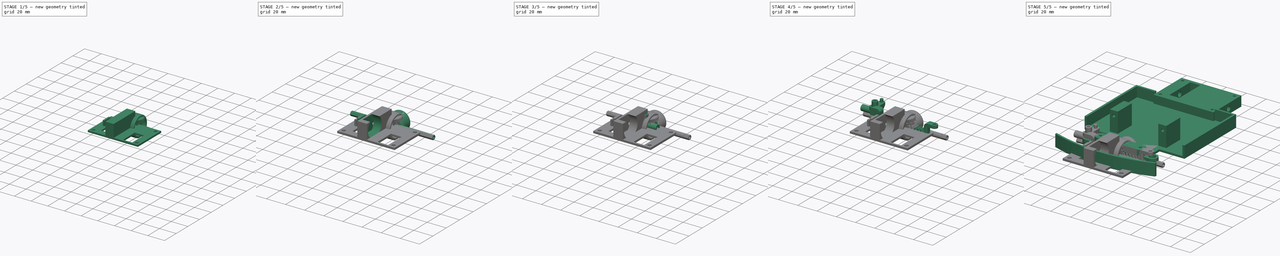
[diagram: build sequence overview — one tinted view per stage of 5, left to right]
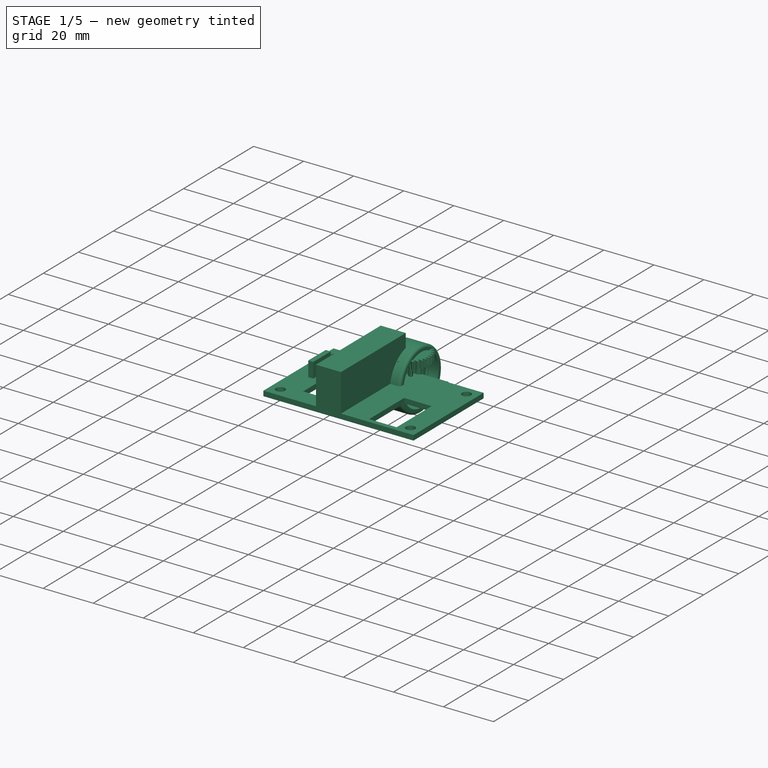
[diagram: stage 1 of 5 — iso view after this stage's code; geometry added in this stage tinted green]
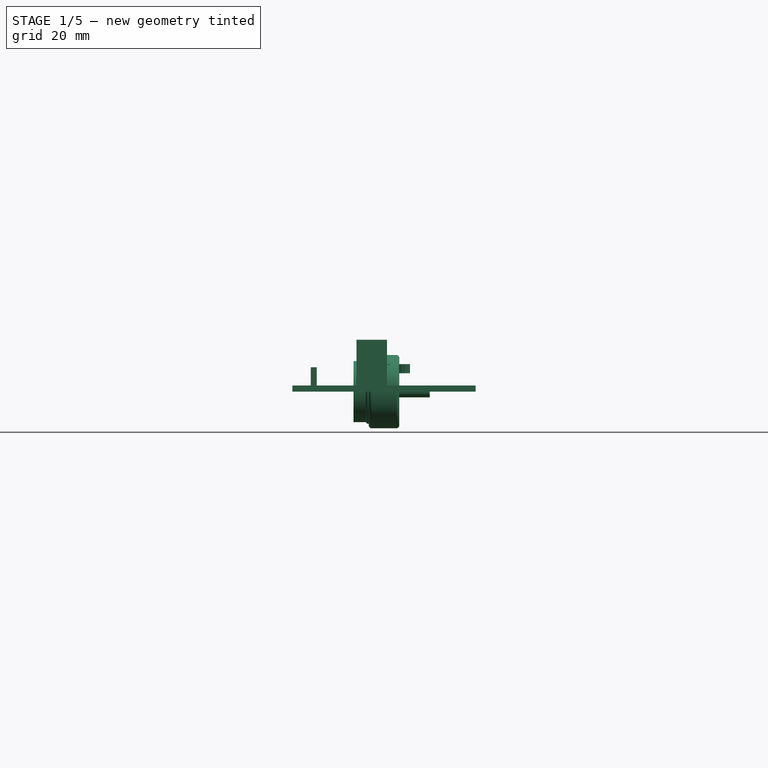
[diagram: stage 1 of 5 — front view after this stage's code; geometry added in this stage tinted green]
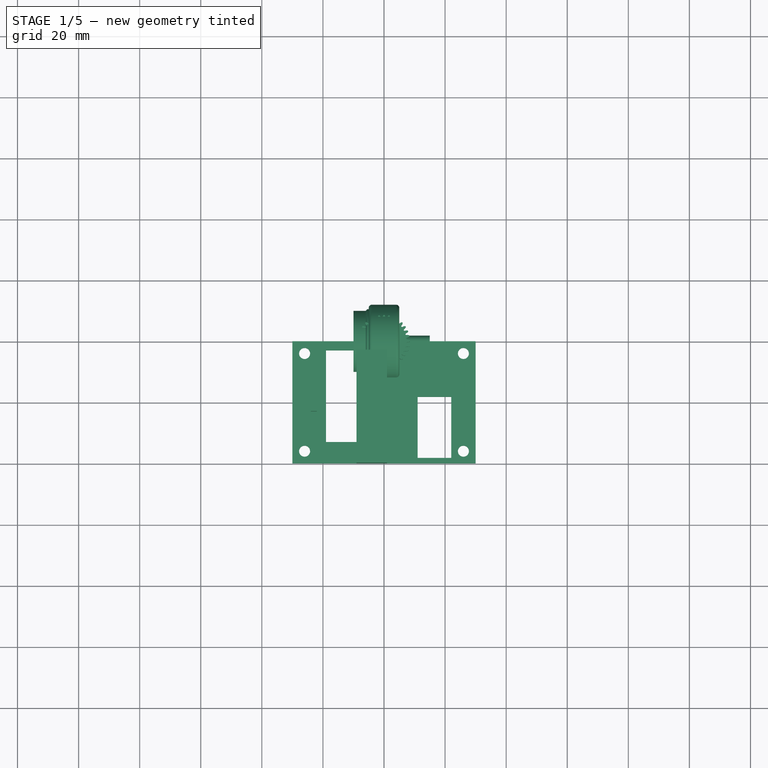
[diagram: stage 1 of 5 — top view after this stage's code; geometry added in this stage tinted green]
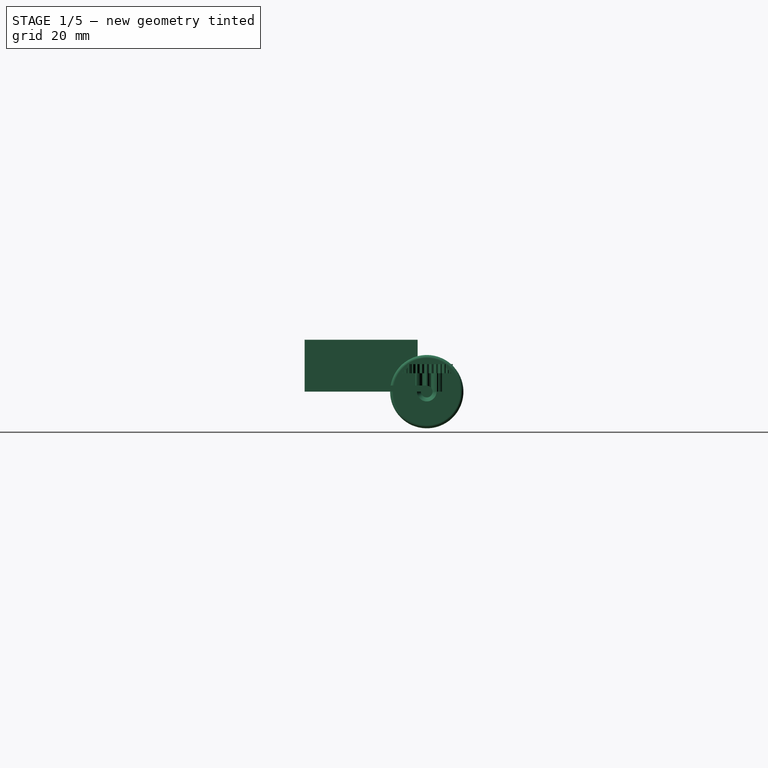
[diagram: stage 1 of 5 — right view after this stage's code; geometry added in this stage tinted green]
FCSTD DOCUMENT  (FreeCAD 0.19R)
Label: kart
License: All rights reserved
LicenseURL: http://en.wikipedia.org/wiki/All_rights_reserved
objects: Sketcher::SketchObject×45, PartDesign::Pad×25, PartDesign::Pocket×21, PartDesign::Body×17, Part::Part2DObjectPython×5, PartDesign::Fillet×4, PartDesign::Revolution×4, PartDesign::Chamfer×3, Spreadsheet::Sheet×1, PartDesign::LinearPattern×1, Part::Mirroring×1
note: 183 computed .brp shape members not serialized (recipe doc carries the construction recipe); baked Part::Feature solids carry a one-line shape summary decoded from their .brp

FEATURE [PartDesign::Body] Body010  label="axle_spacer"
  Group = -> [Sketch035,Sketch036,Pad018,Pocket017]
  Origin = -> Origin010
  Placement = pos=(-12,112,5) rot=(0,0,1;0rad)
  Tip = -> Pocket017
  expr: .Placement.Base.y = <<dimensions>>.kart_length - <<dimensions>>.f_ww_length / 2 - <<dimensions>>.b_ww_length / 2
  expr: .Placement.Base.x = -<<dimensions>>.kart_width / 2 + <<dimensions>>.b_ww_depth + 18
FEATURE [Sketcher::SketchObject] Sketch038
  FullyConstrained = true
  MapMode = 5
  Support = -> [XY_Plane011]
  expr: Constraints[4] = <<dimensions>>.screw_radius_not_screwing
  expr: Constraints[3] = <<dimensions>>.screw_radius_not_screwing
  expr: Constraints[23] = <<dimensions>>.screw_radius_not_screwing
  expr: Constraints[18] = <<dimensions>>.kart_width - <<dimensions>>.b_ww_depth * 2 - 8
  expr: Constraints[22] = <<dimensions>>.screw_radius_not_screwing
  expr: Constraints[40] = <<dimensions>>.b_ww_length / 2
  sketch-geometry (17):
    g0: Circle CenterX=-26 CenterY=-4 CenterZ=0 NormalX=0 NormalY=0 NormalZ=1 AngleXU=0 Radius=1.8
    g1: Circle CenterX=-26 CenterY=-36 CenterZ=0 NormalX=0 NormalY=0 NormalZ=1 AngleXU=0 Radius=1.8
    g2: LineSegment StartX=-26 StartY=-36 StartZ=0 EndX=-26 EndY=-4 EndZ=0
    g3: LineSegment StartX=-19 StartY=-3 StartZ=0 EndX=-9 EndY=-3 EndZ=0
    g4: LineSegment StartX=-9 StartY=-3 StartZ=0 EndX=-9 EndY=-33 EndZ=0
    g5: LineSegment StartX=-9 StartY=-33 StartZ=0 EndX=-19 EndY=-33 EndZ=0
    g6: LineSegment StartX=-19 StartY=-33 StartZ=0 EndX=-19 EndY=-3 EndZ=0
    g7: LineSegment StartX=-26 StartY=-4 StartZ=0 EndX=26 EndY=-4 EndZ=0
    g8: LineSegment StartX=-26 StartY=-36 StartZ=0 EndX=26 EndY=-36 EndZ=0
    g9: Circle CenterX=26 CenterY=-4 CenterZ=0 NormalX=0 NormalY=0 NormalZ=1 AngleXU=0 Radius=1.8
    g10: Circle CenterX=26 CenterY=-36 CenterZ=0 NormalX=0 NormalY=0 NormalZ=1 AngleXU=0 Radius=1.8
    g11: LineSegment StartX=11 StartY=-18.2 StartZ=0 EndX=22 EndY=-18.2 EndZ=0
    g12: LineSegment StartX=22 StartY=-18.2 StartZ=0 EndX=22 EndY=-38.2 EndZ=0
    g13: LineSegment StartX=22 StartY=-38.2 StartZ=0 EndX=11 EndY=-38.2 EndZ=0
    g14: LineSegment StartX=11 StartY=-38.2 StartZ=0 EndX=11 EndY=-18.2 EndZ=0
    g15: GeomPoint X=11 Y=-28.2 Z=0
    g16: GeomPoint X=-9 Y=-18 Z=0
  constraints (43):
    c: Coincident(g2,g1)
    c: Coincident(g2,g0)
    c: DistanceY(g2,g2) = 32
    c: Radius(g0) = 1.8
    c: Radius(g1) = 1.8
    c: Coincident(g3,g4)
    c: Coincident(g4,g5)
    c: Coincident(g5,g6)
    c: Coincident(g6,g3)
    c: Horizontal(g3)
    c: Horizontal(g5)
    c: Vertical(g4)
    c: Vertical(g6)
    c: DistanceX(g3,g3) = 10
    c: DistanceY(g4,g4) = 30
    c: Coincident(g7,g0)
    c: Coincident(g8,g1)
    c: Horizontal(g8)
    c: DistanceX(g7,g7) = 52
    c: Equal(g7,g8)
    c: Coincident(g9,g7)
    c: Coincident(g10,g8)
    c: Radius(g9) = 1.8
    c: Radius(g10) = 1.8
    c: Coincident(g11,g12)
    c: Coincident(g12,g13)
    c: Coincident(g13,g14)
    c: Coincident(g14,g11)
    c: Horizontal(g11)
    c: Horizontal(g13)
    c: Vertical(g12)
    c: Vertical(g14)
    c: DistanceX(g4,g11) = 20
    c: DistanceX(g11,g11) = 11
    c: DistanceY(g12,g12) = 20
    c: Vertical(g2)
    c: Symmetric(g0,g9,g-2)
    c: DistanceY(g0,g-1) = 4
    c: DistanceX(g0,g3) = 7
    c: Symmetric(g11,g13,g15)
    c: DistanceY(g16,g-1) = 18
    c: Symmetric(g3,g4,g16)
    c: DistanceY(g15,g16) = 10.2
FEATURE [Sketcher::SketchObject] Sketch039
  FullyConstrained = true
  MapMode = 5
  Support = -> [XY_Plane011]
  sketch-geometry (4):
    g0: LineSegment StartX=-30 StartY=-40 StartZ=0 EndX=30 EndY=-40 EndZ=0
    g1: LineSegment StartX=30 StartY=-40 StartZ=0 EndX=30 EndY=0 EndZ=0
    g2: LineSegment StartX=30 StartY=0 StartZ=0 EndX=-30 EndY=0 EndZ=0
    g3: LineSegment StartX=-30 StartY=0 StartZ=0 EndX=-30 EndY=-40 EndZ=0
  constraints (11):
    c: Coincident(g0,g1)
    c: Coincident(g1,g2)
    c: Coincident(g2,g3)
    c: Coincident(g3,g0)
    c: Horizontal(g0)
    c: Horizontal(g2)
    c: Vertical(g1)
    c: Vertical(g3)
    c: DistanceX(g2,g2) = 60
    c: DistanceY(g1,g1) = 40
    c: Symmetric(g2,g1,g-1)
FEATURE [PartDesign::Pad] Pad019
  AllowMultiFace = false
  Direction = (1,1,1)
  Length = 2
  Length2 = 100
  Profile = -> Sketch039
  Type = 0
FEATURE [PartDesign::Pocket] Pocket018
  AllowMultiFace = false
  BaseFeature = -> Pad019
  Length = 5
  Length2 = 100
  Profile = -> Sketch038
  Reversed = true
  Type = 1
FEATURE [Sketcher::SketchObject] Sketch040
  FullyConstrained = true
  MapMode = 5
  Support = -> [XY_Plane011]
  expr: Constraints[10] = <<dimensions>>.kart_width / 2 - <<dimensions>>.b_ww_depth - 21
  sketch-geometry (4):
    g0: LineSegment StartX=1 StartY=-3 StartZ=0 EndX=-9 EndY=-3 EndZ=0
    g1: LineSegment StartX=-9 StartY=-3 StartZ=0 EndX=-9 EndY=-40 EndZ=0
    g2: LineSegment StartX=-9 StartY=-40 StartZ=0 EndX=1 EndY=-40 EndZ=0
    g3: LineSegment StartX=1 StartY=-40 StartZ=0 EndX=1 EndY=-3 EndZ=0
  constraints (12):
    c: Coincident(g0,g1)
    c: Coincident(g1,g2)
    c: Coincident(g2,g3)
    c: Coincident(g3,g0)
    c: Horizontal(g0)
    c: Horizontal(g2)
    c: Vertical(g1)
    c: Vertical(g3)
    c: DistanceY(g1,g1) = 37
    c: DistanceY(g0,g-1) = 3
    c: DistanceX(g0,g-1) = 9
    c: DistanceX(g2,g2) = 10
FEATURE [PartDesign::Pad] Pad020
  AllowMultiFace = false
  BaseFeature = -> Pocket018
  Direction = (1,1,1)
  Length = 17
  Length2 = 100
  Profile = -> Sketch040
  Type = 0
FEATURE [PartDesign::Body] Body011  label="motor_mount"
  Group = -> [Pad019,Sketch038,Pocket018,Sketch039,Sketch040,Pad020,Pad021,Sketch041,Pocket019,Sketch042,Sketch043,Pocket020,Sketch044,Pocket021]
  Origin = -> Origin011
  Placement = pos=(0,130,10) rot=(0,0,1;0rad)
  Tip = -> Pocket021
  expr: .Placement.Base.y = <<dimensions>>.kart_length - <<dimensions>>.f_ww_length / 2
FEATURE [Sketcher::SketchObject] Sketch045
  FullyConstrained = true
  MapMode = 5
  Support = -> [XY_Plane012]
  expr: Constraints[11] = <<dimensions>>.kart_width / 2 - <<dimensions>>.b_ww_depth
  sketch-geometry (4):
    g0: LineSegment StartX=-30 StartY=0 StartZ=0 EndX=-22 EndY=0 EndZ=0
    g1: LineSegment StartX=-22 StartY=0 StartZ=0 EndX=-22 EndY=-40 EndZ=0
    g2: LineSegment StartX=-22 StartY=-40 StartZ=0 EndX=-30 EndY=-40 EndZ=0
    g3: LineSegment StartX=-30 StartY=-40 StartZ=0 EndX=-30 EndY=0 EndZ=0
  constraints (12):
    c: Coincident(g0,g1)
    c: Coincident(g1,g2)
    c: Coincident(g2,g3)
    c: Coincident(g3,g0)
    c: Horizontal(g0)
    c: Horizontal(g2)
    c: Vertical(g1)
    c: Vertical(g3)
    c: DistanceY(g3,g3) = 40
    c: DistanceX(g2,g2) = 8
    c: PointOnObject(g0,g-1)
    c: DistanceX(g0,g-1) = 30
FEATURE [PartDesign::Pad] Pad022
  AllowMultiFace = false
  Direction = (1,1,1)
  Length = 2
  Length2 = 100
  Profile = -> Sketch045
  Type = 0
FEATURE [Sketcher::SketchObject] Sketch046
  FullyConstrained = true
  MapMode = 5
  Support = -> [XY_Plane012]
  expr: Constraints[0] = <<dimensions>>.screw_radius_not_screwing
  expr: Constraints[1] = <<dimensions>>.screw_radius_not_screwing
  expr: Constraints[4] = <<dimensions>>.kart_width / 2 - <<dimensions>>.b_ww_depth - 4
  sketch-geometry (3):
    g0: Circle CenterX=-26 CenterY=-4 CenterZ=0 NormalX=0 NormalY=0 NormalZ=1 AngleXU=0 Radius=1.8
    g1: Circle CenterX=-26 CenterY=-36 CenterZ=0 NormalX=0 NormalY=0 NormalZ=1 AngleXU=0 Radius=1.8
    g2: LineSegment StartX=-26 StartY=-36 StartZ=0 EndX=-26 EndY=-4 EndZ=0
  constraints (8):
    c: Radius(g0) = 1.8
    c: Radius(g1) = 1.8
    c: DistanceY(g1,g0) = 32
    c: DistanceY(g0,g-1) = 4
    c: DistanceX(g0,g-1) = 26
    c: Coincident(g2,g1)
    c: Coincident(g2,g0)
    c: Vertical(g2)
FEATURE [PartDesign::Pocket] Pocket022
  AllowMultiFace = false
  BaseFeature = -> Pad022
  Length = 5
  Length2 = 100
  Profile = -> Sketch046
  Reversed = true
  Type = 1
FEATURE [Sketcher::SketchObject] Sketch047
  FullyConstrained = false
  MapMode = 5
  Support = -> [XY_Plane012]
  expr: Constraints[10] = <<dimensions>>.b_ww_length / 2 - 5
  expr: Constraints[11] = <<dimensions>>.kart_width / 2 - <<dimensions>>.b_ww_depth - 8
  sketch-geometry (4):
    g0: LineSegment StartX=-24 StartY=-13 StartZ=0 EndX=-22 EndY=-13 EndZ=0
    g1: LineSegment StartX=-22 StartY=-13 StartZ=0 EndX=-22 EndY=-23 EndZ=0
    g2: LineSegment StartX=-22 StartY=-23 StartZ=0 EndX=-24 EndY=-23 EndZ=0
    g3: LineSegment StartX=-24 StartY=-23 StartZ=0 EndX=-24 EndY=-13 EndZ=0
  constraints (12):
    c: Coincident(g0,g1)
    c: Coincident(g1,g2)
    c: Coincident(g2,g3)
    c: Coincident(g3,g0)
    c: Horizontal(g0)
    c: Horizontal(g2)
    c: Vertical(g1)
    c: Vertical(g3)
    c: DistanceY(g3,g3) = 10
    c: DistanceX(g2,g2) = 2
    c: DistanceY(g0,g-1) = 13
    c: DistanceX(g0,g-1) = 22
FEATURE [PartDesign::Pad] Pad023
  AllowMultiFace = false
  BaseFeature = -> Pocket022
  Direction = (1,1,1)
  Length = 8
  Length2 = 100
  Profile = -> Sketch047
  Type = 0
FEATURE [PartDesign::Body] Body012  label="gearing_axle_holder"
  Group = -> [Sketch045,Pad022,Sketch046,Pocket022,Sketch047,Pad023]
  Origin = -> Origin012
  Placement = pos=(0,130,12) rot=(0,0,1;0rad)
  Tip = -> Pad023
  expr: .Placement.Base.y = <<dimensions>>.kart_length - <<dimensions>>.f_ww_length / 2
FEATURE [Sketcher::SketchObject] Sketch048
  FullyConstrained = false
  MapMode = 5
  Placement = pos=(0,0,0) rot=(0.57735,0.57735,0.57735;2.0944rad)
  Support = -> [YZ_Plane013]
  sketch-geometry (1):
    g0: Circle CenterX=0 CenterY=0 CenterZ=0 NormalX=0 NormalY=0 NormalZ=1 AngleXU=0 Radius=1.9
  constraints (2):
    c: Coincident(g0,g-1)
    c: Radius(g0) = 1.9
FEATURE [PartDesign::Pad] Pad024
  AllowMultiFace = false
  Direction = (1,1,1)
  Length = 15
  Length2 = 100
  Placement = pos=(0,0,0) rot=(0.57735,0.57735,0.57735;2.0944rad)
  Profile = -> Sketch048
  Type = 0
FEATURE [PartDesign::Body] Body013  label="gearing_axle"
  Group = -> [Sketch048,Pad024]
  Origin = -> Origin013
  Placement = pos=(-22,112,17) rot=(0,0,1;0rad)
  Tip = -> Pad024
  expr: .Placement.Base.y = <<dimensions>>.kart_length - <<dimensions>>.f_ww_length / 2 - <<dimensions>>.b_ww_length / 2
FEATURE [Part::Part2DObjectPython] InvoluteGear003  # Draft 2D object (typed FeaturePython)
  ExternalGear = true
  HighPrecision = true
  Modules = 1
  NumberOfTeeth = 8
  PressureAngle = 20
FEATURE [PartDesign::Pad] Pad025
  AllowMultiFace = false
  Direction = (1,1,1)
  Length = 6
  Length2 = 100
  Profile = -> InvoluteGear003
  Type = 0
FEATURE [Part::Part2DObjectPython] InvoluteGear004  # Draft 2D object (typed FeaturePython)
  ExternalGear = true
  HighPrecision = true
  Modules = 0.5
  NumberOfTeeth = 32
  Placement = pos=(0,0,6) rot=(0,0,1;0rad)
  PressureAngle = 20
FEATURE [PartDesign::Pad] Pad026
  AllowMultiFace = false
  BaseFeature = -> Pad025
  Direction = (1,1,1)
  Length = 3
  Length2 = 100
  Profile = -> InvoluteGear004
  Type = 0
FEATURE [Sketcher::SketchObject] Sketch049
  FullyConstrained = false
  MapMode = 5
  Support = -> [XY_Plane014]
  sketch-geometry (1):
    g0: Circle CenterX=0 CenterY=0 CenterZ=0 NormalX=0 NormalY=0 NormalZ=1 AngleXU=0 Radius=2
  constraints (2):
    c: Coincident(g0,g-1)
    c: Radius(g0) = 2
FEATURE [PartDesign::Pocket] Pocket023
  AllowMultiFace = false
  BaseFeature = -> Pad026
  Length = 5
  Length2 = 100
  Profile = -> Sketch049
  Reversed = true
  Type = 1
FEATURE [PartDesign::Body] Body014  label="gearing_gear"
  Group = -> [InvoluteGear003,Pad025,InvoluteGear004,Pad026,Sketch049,Pocket023]
  Origin = -> Origin014
  Placement = pos=(-18,112,17) rot=(0,1,0;1.5708rad)
  Tip = -> Pocket023
  expr: .Placement.Base.y = <<dimensions>>.kart_length - <<dimensions>>.f_ww_length / 2 - <<dimensions>>.b_ww_length / 2
  expr: .Placement.Base.x = -<<dimensions>>.kart_width / 2 + <<dimensions>>.b_ww_depth + 12
FEATURE [Sketcher::SketchObject] Sketch050
  FullyConstrained = false
  MapMode = 5
  Placement = pos=(0,0,0) rot=(1,0,0;1.5708rad)
  Support = -> [XZ_Plane015]
  expr: Constraints[39] = <<dimensions>>.screw_radius_not_screwing
  sketch-geometry (14):
    g0: LineSegment StartX=0 StartY=3.2 StartZ=0 EndX=-7 EndY=3.2 EndZ=0
    g1: LineSegment StartX=-9 StartY=1.8 StartZ=0 EndX=-9 EndY=5.2 EndZ=0
    g2: LineSegment StartX=-9 StartY=5.2 StartZ=0 EndX=-2 EndY=5.2 EndZ=0
    g3: LineSegment StartX=-2 StartY=5.2 StartZ=0 EndX=-2 EndY=8 EndZ=0
    g4: LineSegment StartX=-2 StartY=8 StartZ=0 EndX=-10 EndY=8 EndZ=0
    g5: LineSegment StartX=-10 StartY=8 StartZ=0 EndX=-10 EndY=10 EndZ=0
    g6: LineSegment StartX=-10 StartY=10 StartZ=0 EndX=-6 EndY=10 EndZ=0
    g7: LineSegment StartX=-6 StartY=10 StartZ=0 EndX=-5.5 EndY=10.5 EndZ=0
    g8: LineSegment StartX=-5.5 StartY=10.5 StartZ=0 EndX=-4.5 EndY=10.5 EndZ=0
    g9: LineSegment StartX=-4.5 StartY=10.5 StartZ=0 EndX=-4 EndY=10 EndZ=0
    g10: LineSegment StartX=-4 StartY=10 StartZ=0 EndX=0 EndY=10 EndZ=0
    g11: LineSegment StartX=0 StartY=10 StartZ=0 EndX=0 EndY=3.2 EndZ=0
    g12: LineSegment StartX=-9 StartY=1.8 StartZ=0 EndX=-8.4 EndY=1.8 EndZ=0
    g13: LineSegment StartX=-8.4 StartY=1.8 StartZ=0 EndX=-7 EndY=3.2 EndZ=0
  constraints (42):
    c: PointOnObject(g0,g-2)
    c: Horizontal(g0)
    c: Vertical(g1)
    c: Horizontal(g2)
    c: Coincident(g3,g2)
    c: Vertical(g3)
    c: Coincident(g4,g3)
    c: Horizontal(g4)
    c: Coincident(g5,g4)
    c: Vertical(g5)
    c: Horizontal(g6)
    c: Coincident(g7,g6)
    c: Coincident(g8,g7)
    c: Horizontal(g8)
    c: Coincident(g9,g8)
    c: Coincident(g10,g9)
    c: Horizontal(g10)
    c: DistanceY(g-1,g10) = 10
    c: Coincident(g5,g6)
    c: DistanceY(g9,g8) = 0.5
    c: DistanceX(g5,g10) = 10
    c: Coincident(g11,g10)
    c: Coincident(g11,g0)
    c: Vertical(g11)
    c: DistanceY(g6,g7) = 0.5
    c: Angle(g10,g9) = 2.35619
    c: Angle(g7,g6) = 2.35619
    c: DistanceX(g8,g8) = 1
    c: Equal(g10,g6)
    c: DistanceY(g5,g5) = 2
    c: DistanceX(g2,g0) = 2
    c: Coincident(g2,g1)
    c: Coincident(g12,g1)
    c: Horizontal(g12)
    c: Coincident(g13,g12)
    c: Coincident(g13,g0)
    c: DistanceX(g1,g-1) = 9
    c: DistanceY(g-1,g0) = 3.2
    c: DistanceY(g0,g1) = 2
    c: DistanceY(g-1,g1) = 1.8
    c: Angle(g13,g0) = 2.35619
    c: DistanceX(g1,g0) = 2
FEATURE [PartDesign::Revolution] Revolution002
  AllowMultiFace = false
  Angle = 360
  Axis = (1,0,0)
  Base = (0,0,0)
  Placement = pos=(0,0,0) rot=(1,0,0;1.5708rad)
  Profile = -> Sketch050
  ReferenceAxis = -> Sketch050 [H_Axis]
FEATURE [PartDesign::Body] Body015  label="front_rim"
  Group = -> [Sketch050,Revolution002]
  Origin = -> Origin015
  Placement = pos=(-64,0,0) rot=(0,0,1;0rad)
  Tip = -> Revolution002
FEATURE [Sketcher::SketchObject] Sketch051
  FullyConstrained = false
  MapMode = 5
  Placement = pos=(0,0,0) rot=(1,0,0;1.5708rad)
  Support = -> [XZ_Plane016]
  sketch-geometry (10):
    g0: LineSegment StartX=-5 StartY=-10 StartZ=0 EndX=-1 EndY=-10 EndZ=0
    g1: LineSegment StartX=-1 StartY=-10 StartZ=0 EndX=-0.5 EndY=-10.5 EndZ=0
    g2: LineSegment StartX=-0.5 StartY=-10.5 StartZ=0 EndX=0.5 EndY=-10.5 EndZ=0
    g3: LineSegment StartX=0.5 StartY=-10.5 StartZ=0 EndX=1 EndY=-10 EndZ=0
    g4: LineSegment StartX=1 StartY=-10 StartZ=0 EndX=5 EndY=-10 EndZ=0
    g5: LineSegment StartX=5 StartY=-10 StartZ=0 EndX=5 EndY=-11 EndZ=0
    g6: ArcOfCircle CenterX=4 CenterY=-11 CenterZ=0 NormalX=0 NormalY=0 NormalZ=1 AngleXU=0 Radius=1 StartAngle=4.71239 EndAngle=6.28319
    g7: LineSegment StartX=4 StartY=-12 StartZ=0 EndX=-4.00001 EndY=-12 EndZ=0
    g8: ArcOfCircle CenterX=-4 CenterY=-11 CenterZ=0 NormalX=0 NormalY=0 NormalZ=1 AngleXU=0 Radius=1 StartAngle=3.14159 EndAngle=4.71238
    g9: LineSegment StartX=-5 StartY=-10 StartZ=0 EndX=-5 EndY=-11 EndZ=0
  constraints (29):
    c: Horizontal(g0)
    c: Coincident(g0,g1)
    c: Coincident(g1,g2)
    c: Coincident(g2,g3)
    c: Coincident(g3,g4)
    c: Horizontal(g4)
    c: Coincident(g4,g5)
    c: Vertical(g5)
    c: Tangent(g5,g6) = 1.5708
    c: Coincident(g6,g7)
    c: Horizontal(g7)
    c: Coincident(g9,g0)
    c: Coincident(g9,g8)
    c: Vertical(g9)
    c: Coincident(g8,g7)
    c: Radius(g6) = 1
    c: Radius(g8) = 1
    c: DistanceY(g4,g-1) = 10
    c: DistanceY(g5,g5) = 1
    c: DistanceX(g0,g4) = 10
    c: Equal(g4,g0)
    c: DistanceX(g2,g2) = 1
    c: Angle(g3,g2) = 2.35619
    c: Equal(g5,g9)
    c: Symmetric(g1,g2,g-2)
    c: Symmetric(g0,g3,g-2)
    c: DistanceY(g2,g3) = 0.5
    c: Tangent(g7,g6)
    c: Tangent(g8,g7)
FEATURE [PartDesign::Revolution] Revolution003
  AllowMultiFace = false
  Angle = 360
  Axis = (1,0,0)
  Base = (0,0,0)
  Placement = pos=(0,0,0) rot=(1,0,0;1.5708rad)
  Profile = -> Sketch051
  ReferenceAxis = -> Sketch051 [H_Axis]
  Reversed = true
FEATURE [PartDesign::Body] Body016  label="tire"
  Group = -> [Sketch051,Revolution003]
  Origin = -> Origin016
  Placement = pos=(-69,0,0) rot=(0,0,1;0rad)
  Tip = -> Revolution003
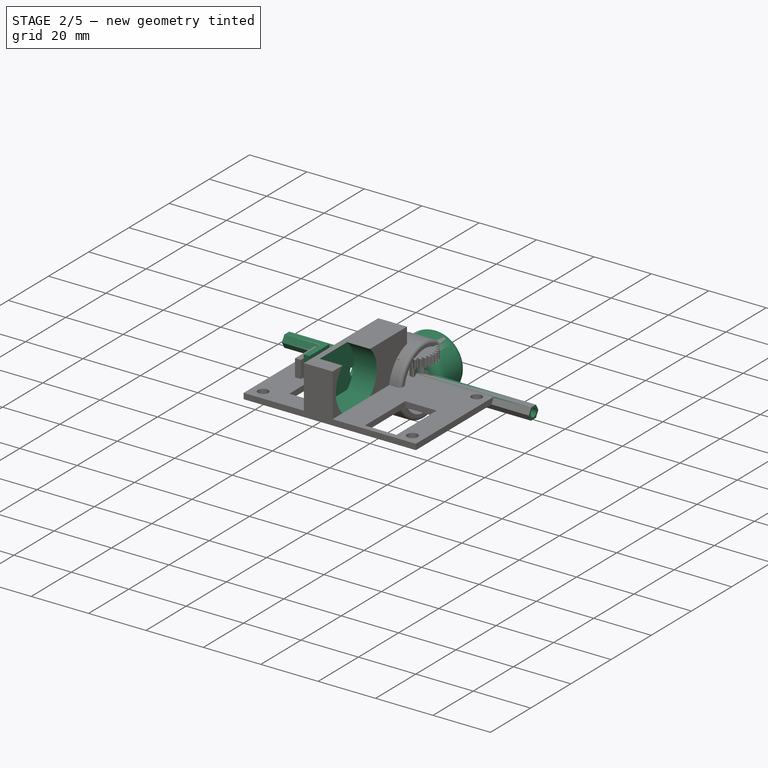
[diagram: stage 2 of 5 — iso view after this stage's code; geometry added in this stage tinted green]
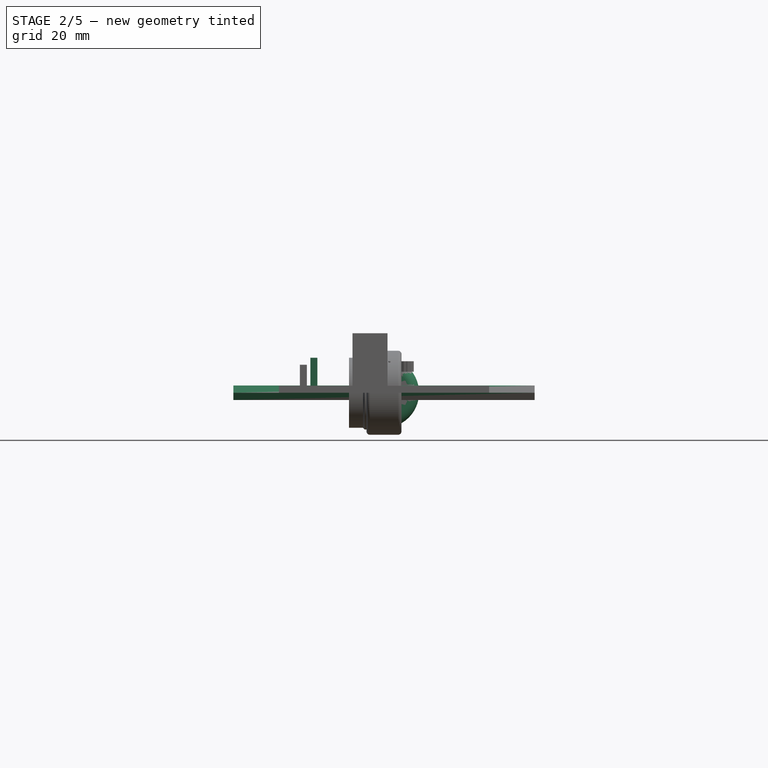
[diagram: stage 2 of 5 — front view after this stage's code; geometry added in this stage tinted green]
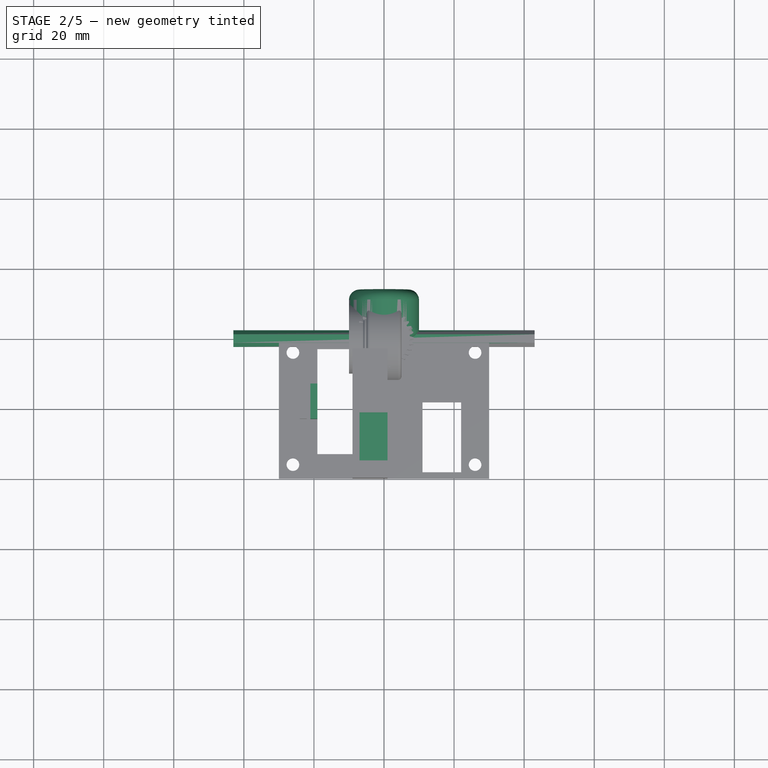
[diagram: stage 2 of 5 — top view after this stage's code; geometry added in this stage tinted green]
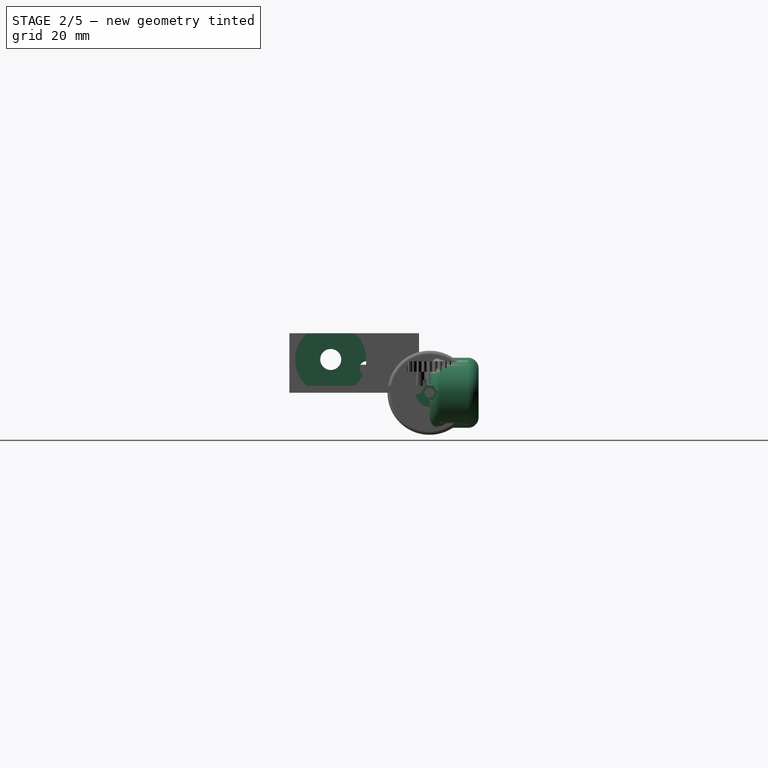
[diagram: stage 2 of 5 — right view after this stage's code; geometry added in this stage tinted green]
FEATURE [PartDesign::Body] Body005  label="front_wheel"
  Group = -> [Sketch027,Revolution,Chamfer002]
  Origin = -> Origin005
  Placement = pos=(38,2e-15,5) rot=(0,0,-1;1.5708rad)
  Tip = -> Chamfer002
FEATURE [Sketcher::SketchObject] Sketch028
  FullyConstrained = false
  MapMode = 5
  Placement = pos=(0,0,0) rot=(0.57735,0.57735,0.57735;2.0944rad)
  Support = -> [YZ_Plane006]
  sketch-geometry (1):
    g0: Circle CenterX=0 CenterY=0 CenterZ=0 NormalX=0 NormalY=0 NormalZ=1 AngleXU=0 Radius=2.3
  constraints (2):
    c: Coincident(g0,g-1)
    c: Radius(g0) = 2.3
FEATURE [Sketcher::SketchObject] Sketch029
  FullyConstrained = false
  MapMode = 5
  Placement = pos=(0,0,0) rot=(0.57735,0.57735,0.57735;2.0944rad)
  Support = -> [YZ_Plane006]
  sketch-geometry (7):
    g0: LineSegment StartX=2.4 StartY=0 StartZ=0 EndX=1.2 EndY=2.07846 EndZ=0
    g1: LineSegment StartX=1.2 StartY=2.07846 StartZ=0 EndX=-1.2 EndY=2.07846 EndZ=0
    g2: LineSegment StartX=-1.2 StartY=2.07846 StartZ=0 EndX=-2.4 EndY=0 EndZ=0
    g3: LineSegment StartX=-2.4 StartY=2e-16 StartZ=0 EndX=-1.2 EndY=-2.07846 EndZ=0
    g4: LineSegment StartX=-1.2 StartY=-2.07846 StartZ=0 EndX=1.2 EndY=-2.07846 EndZ=0
    g5: LineSegment StartX=1.2 StartY=-2.07846 StartZ=0 EndX=2.4 EndY=0 EndZ=0
    g6: Circle CenterX=0 CenterY=0 CenterZ=0 NormalX=0 NormalY=0 NormalZ=1 AngleXU=0 Radius=2.4
  constraints (16):
    c: Coincident(g0,g1)
    c: Coincident(g1,g2)
    c: Coincident(g2,g3)
    c: Coincident(g3,g4)
    c: Coincident(g4,g5)
    c: Coincident(g5,g0)
    c: Equal(g0, g1-g5) x5
    c: PointOnObject(g0,g6)
    c: PointOnObject(g1,g6)
    c: PointOnObject(g2,g6)
    c: PointOnObject(g3,g6)
    c: PointOnObject(g4,g6)
    c: PointOnObject(g5,g6)
    c: Coincident(g6,g-1)
    c: PointOnObject(g5,g-1)
    c: DistanceX(g-1,g0) = 2.4
FEATURE [PartDesign::Pad] Pad014
  AllowMultiFace = false
  Direction = (1,1,1)
  Length = 86
  Length2 = 100
  Midplane = true
  Placement = pos=(0,0,0) rot=(0.57735,0.57735,0.57735;2.0944rad)
  Profile = -> Sketch029
  Type = 0
  expr: Length = <<dimensions>>.kart_width - 14
FEATURE [PartDesign::Body] Body007  label="back_axle_gear"
  Group = -> [InvoluteGear001,Pad015,Sketch030,Pocket013]
  Origin = -> Origin007
  Placement = pos=(-12,112,5) rot=(0.250563,-0.935113,-0.250563;1.63783rad)
  Tip = -> Pocket013
  expr: .Placement.Base.y = <<dimensions>>.kart_length - <<dimensions>>.f_ww_length / 2 - <<dimensions>>.b_ww_length / 2
  expr: .Placement.Base.x = -<<dimensions>>.kart_width / 2 + <<dimensions>>.b_ww_depth + 18
FEATURE [Part::Part2DObjectPython] InvoluteGear002  # Draft 2D object (typed FeaturePython)
  ExternalGear = true
  HighPrecision = true
  Modules = 0.5
  NumberOfTeeth = 9
  PressureAngle = 20
FEATURE [PartDesign::Pad] Pad016
  AllowMultiFace = false
  Direction = (1,1,1)
  Length = 6
  Length2 = 100
  Profile = -> InvoluteGear002
  Type = 0
FEATURE [Sketcher::SketchObject] Sketch031
  FullyConstrained = false
  MapMode = 5
  Support = -> [XY_Plane008]
  expr: Constraints[1] = <<dimensions>>.motor_axle_diameter
  sketch-geometry (1):
    g0: Circle CenterX=0 CenterY=0 CenterZ=0 NormalX=0 NormalY=0 NormalZ=1 AngleXU=0 Radius=1.1
  constraints (2):
    c: Coincident(g0,g-1)
    c: Diameter(g0) = 2.2
FEATURE [PartDesign::Pocket] Pocket014
  AllowMultiFace = false
  BaseFeature = -> Pad016
  Length = 5
  Length2 = 100
  Midplane = true
  Profile = -> Sketch031
  Type = 1
FEATURE [PartDesign::Body] Body008  label="motor_gear"
  Group = -> [InvoluteGear002,Pad016,Sketch031,Pocket014]
  Origin = -> Origin008
  Placement = pos=(-9,101.8,19) rot=(0.704063,0.092692,-0.704063;3.32645rad)
  Tip = -> Pocket014
  expr: .Placement.Base.y = <<dimensions>>.kart_length - <<dimensions>>.f_ww_length / 2 - <<dimensions>>.b_ww_length / 2 - 10.2
  expr: .Placement.Base.x = -<<dimensions>>.kart_width / 2 + <<dimensions>>.b_ww_depth + 21
FEATURE [Sketcher::SketchObject] Sketch032
  FullyConstrained = false
  MapMode = 5
  Placement = pos=(0,0,0) rot=(0.57735,0.57735,0.57735;2.0944rad)
  Support = -> [YZ_Plane006]
  expr: Constraints[1] = <<dimensions>>.screw_radius
  sketch-geometry (1):
    g0: Circle CenterX=0 CenterY=0 CenterZ=0 NormalX=0 NormalY=0 NormalZ=1 AngleXU=0 Radius=1.4
  constraints (2):
    c: Coincident(g0,g-1)
    c: Radius(g0) = 1.4
FEATURE [PartDesign::Pocket] Pocket015
  AllowMultiFace = false
  BaseFeature = -> Pad014
  Length = 5
  Length2 = 100
  Midplane = true
  Placement = pos=(0,0,0) rot=(0.57735,0.57735,0.57735;2.0944rad)
  Profile = -> Sketch032
  Type = 1
FEATURE [PartDesign::Body] Body006  label="back_axle"
  Group = -> [Pad014,Pocket015,Sketch028,Pad013,Sketch029,Sketch032]
  Origin = -> Origin006
  Placement = pos=(0,112,5) rot=(0,0,1;0rad)
  Tip = -> Pad013
  expr: .Placement.Base.y = <<dimensions>>.kart_length - <<dimensions>>.f_ww_length / 2 - <<dimensions>>.b_ww_length / 2
FEATURE [Sketcher::SketchObject] Sketch033
  FullyConstrained = false
  MapMode = 5
  Placement = pos=(0,0,0) rot=(0.57735,0.57735,0.57735;2.0944rad)
  Support = -> [YZ_Plane009]
  expr: Constraints[28] = <<dimensions>>.screw_radius_not_screwing
  sketch-geometry (9):
    g0: LineSegment StartX=2 StartY=4 StartZ=0 EndX=2 EndY=7 EndZ=0
    g1: LineSegment StartX=0 StartY=1.8 StartZ=0 EndX=0 EndY=7 EndZ=0
    g2: LineSegment StartX=2 StartY=7 StartZ=0 EndX=14 EndY=7 EndZ=0
    g3: ArcOfCircle CenterX=11 CenterY=7 CenterZ=0 NormalX=0 NormalY=0 NormalZ=1 AngleXU=0 Radius=3 StartAngle=1e-16 EndAngle=1.5708
    g4: LineSegment StartX=3 StartY=10 StartZ=0 EndX=11 EndY=10 EndZ=0
    g5: ArcOfCircle CenterX=3 CenterY=7 CenterZ=0 NormalX=0 NormalY=0 NormalZ=1 AngleXU=0 Radius=3 StartAngle=1.5708 EndAngle=3.14159
    g6: LineSegment StartX=9 StartY=1.8 StartZ=0 EndX=9 EndY=4 EndZ=0
    g7: LineSegment StartX=9 StartY=4 StartZ=0 EndX=2 EndY=4 EndZ=0
    g8: LineSegment StartX=0 StartY=1.8 StartZ=0 EndX=9 EndY=1.8 EndZ=0
  constraints (29):
    c: Vertical(g0)
    c: PointOnObject(g1,g-2)
    c: Coincident(g2,g0)
    c: Horizontal(g2)
    c: Coincident(g3,g2)
    c: Coincident(g4,g3)
    c: Tangent(g3,g4)
    c: DistanceX(g4,g4) = 8
    c: DistanceX(g2,g2) = 12
    c: PointOnObject(g3,g2)
    c: Coincident(g5,g4)
    c: Coincident(g5,g1)
    c: PointOnObject(g5,g2)
    c: Equal(g5,g3)
    c: Horizontal(g4)
    c: Tangent(g5,g1)
    c: Vertical(g1)
    c: Vertical(g6)
    c: Coincident(g7,g6)
    c: Coincident(g7,g0)
    c: Horizontal(g7)
    c: DistanceX(g1,g0) = 2
    c: DistanceY(g-1,g4) = 10
    c: Coincident(g8,g6)
    c: Horizontal(g8)
    c: Coincident(g1,g8)
    c: DistanceX(g1,g6) = 9
    c: DistanceY(g-1,g6) = 4
    c: DistanceY(g-1,g6) = 1.8
FEATURE [PartDesign::Revolution] Revolution001
  AllowMultiFace = false
  Angle = 360
  Axis = (3e-16,1,-2e-16)
  Base = (0,0,0)
  Placement = pos=(0,0,0) rot=(0.57735,0.57735,0.57735;2.0944rad)
  Profile = -> Sketch033
  ReferenceAxis = -> Sketch033 [H_Axis]
FEATURE [Sketcher::SketchObject] Sketch034
  FullyConstrained = false
  MapMode = 5
  Placement = pos=(0,0,0) rot=(1,0,0;1.5708rad)
  Support = -> [XZ_Plane009]
  sketch-geometry (7):
    g0: LineSegment StartX=2.5 StartY=0 StartZ=0 EndX=1.25 EndY=2.16506 EndZ=0
    g1: LineSegment StartX=1.25 StartY=2.16506 StartZ=0 EndX=-1.25 EndY=2.16506 EndZ=0
    g2: LineSegment StartX=-1.25 StartY=2.16506 StartZ=0 EndX=-2.5 EndY=-4e-16 EndZ=0
    g3: LineSegment StartX=-2.5 StartY=-4e-16 StartZ=0 EndX=-1.25 EndY=-2.16506 EndZ=0
    g4: LineSegment StartX=-1.25 StartY=-2.16506 StartZ=0 EndX=1.25 EndY=-2.16506 EndZ=0
    g5: LineSegment StartX=1.25 StartY=-2.16506 StartZ=0 EndX=2.5 EndY=0 EndZ=0
    g6: Circle CenterX=0 CenterY=0 CenterZ=0 NormalX=0 NormalY=0 NormalZ=1 AngleXU=0 Radius=2.5
  constraints (16):
    c: Coincident(g0,g1)
    c: Coincident(g1,g2)
    c: Coincident(g2,g3)
    c: Coincident(g3,g4)
    c: Coincident(g4,g5)
    c: Coincident(g5,g0)
    c: Equal(g0, g1-g5) x5
    c: PointOnObject(g0,g6)
    c: PointOnObject(g1,g6)
    c: PointOnObject(g2,g6)
    c: PointOnObject(g3,g6)
    c: PointOnObject(g4,g6)
    c: PointOnObject(g5,g6)
    c: Coincident(g6,g-1)
    c: PointOnObject(g5,g-1)
    c: DistanceX(g-1,g0) = 2.5
FEATURE [PartDesign::Pocket] Pocket016
  AllowMultiFace = false
  BaseFeature = -> Revolution001
  Length = 7
  Length2 = 100
  Placement = pos=(0,0,0) rot=(0.57735,0.57735,0.57735;2.0944rad)
  Profile = -> Sketch034
  Type = 0
FEATURE [PartDesign::Body] Body009  label="back_wheel"
  Group = -> [Sketch033,Revolution001,Sketch034,Pocket016]
  Origin = -> Origin009
  Placement = pos=(38,112,5) rot=(0,0,-1;1.5708rad)
  Tip = -> Pocket016
  expr: .Placement.Base.y = <<dimensions>>.kart_length - <<dimensions>>.f_ww_length / 2 - <<dimensions>>.b_ww_length / 2
FEATURE [Sketcher::SketchObject] Sketch035
  FullyConstrained = false
  MapMode = 5
  Placement = pos=(0,0,0) rot=(0.57735,0.57735,0.57735;2.0944rad)
  Support = -> [YZ_Plane010]
  sketch-geometry (7):
    g0: LineSegment StartX=2.4 StartY=0 StartZ=0 EndX=1.2 EndY=2.07846 EndZ=0
    g1: LineSegment StartX=1.2 StartY=2.07846 StartZ=0 EndX=-1.2 EndY=2.07846 EndZ=0
    g2: LineSegment StartX=-1.2 StartY=2.07846 StartZ=0 EndX=-2.4 EndY=0 EndZ=0
    g3: LineSegment StartX=-2.4 StartY=1e-16 StartZ=0 EndX=-1.2 EndY=-2.07846 EndZ=0
    g4: LineSegment StartX=-1.2 StartY=-2.07846 StartZ=0 EndX=1.2 EndY=-2.07846 EndZ=0
    g5: LineSegment StartX=1.2 StartY=-2.07846 StartZ=0 EndX=2.4 EndY=0 EndZ=0
    g6: Circle CenterX=0 CenterY=0 CenterZ=0 NormalX=0 NormalY=0 NormalZ=1 AngleXU=0 Radius=2.4
  constraints (16):
    c: Coincident(g0,g1)
    c: Coincident(g1,g2)
    c: Coincident(g2,g3)
    c: Coincident(g3,g4)
    c: Coincident(g4,g5)
    c: Coincident(g5,g0)
    c: Equal(g0, g1-g5) x5
    c: PointOnObject(g0,g6)
    c: PointOnObject(g1,g6)
    c: PointOnObject(g2,g6)
    c: PointOnObject(g3,g6)
    c: PointOnObject(g4,g6)
    c: PointOnObject(g5,g6)
    c: Coincident(g6,g-1)
    c: PointOnObject(g5,g-1)
    c: DistanceX(g-1,g0) = 2.4
FEATURE [Sketcher::SketchObject] Sketch036
  FullyConstrained = false
  MapMode = 5
  Placement = pos=(0,0,0) rot=(0.57735,0.57735,0.57735;2.0944rad)
  Support = -> [YZ_Plane010]
  sketch-geometry (1):
    g0: Circle CenterX=0 CenterY=0 CenterZ=0 NormalX=0 NormalY=0 NormalZ=1 AngleXU=0 Radius=4
  constraints (2):
    c: Coincident(g0,g-1)
    c: Radius(g0) = 4
FEATURE [PartDesign::Pad] Pad018
  AllowMultiFace = false
  Direction = (1,1,1)
  Length = 3
  Length2 = 100
  Placement = pos=(0,0,0) rot=(0.57735,0.57735,0.57735;2.0944rad)
  Profile = -> Sketch036
  Type = 0
FEATURE [PartDesign::Pocket] Pocket017
  AllowMultiFace = false
  BaseFeature = -> Pad018
  Length = 5
  Length2 = 100
  Placement = pos=(0,0,0) rot=(0.57735,0.57735,0.57735;2.0944rad)
  Profile = -> Sketch035
  Reversed = true
  Type = 2
FEATURE [Sketcher::SketchObject] Sketch041
  AttachmentOffset = pos=(0,0,-21) rot=(0,0,1;0rad)
  FullyConstrained = true
  MapMode = 5
  Placement = pos=(-21,4.7e-15,-4.7e-15) rot=(0.57735,0.57735,0.57735;2.0944rad)
  Support = -> [YZ_Plane011]
  expr: .AttachmentOffset.Base.z = -<<dimensions>>.kart_width / 2 + <<dimensions>>.b_ww_depth + 9
  expr: Constraints[2] = <<dimensions>>.b_ww_length / 2
  sketch-geometry (1):
    g0: Circle CenterX=-18 CenterY=7 CenterZ=0 NormalX=0 NormalY=0 NormalZ=1 AngleXU=0 Radius=2
  constraints (3):
    c: Radius(g0) = 2
    c: DistanceY(g-1,g0) = 7
    c: DistanceX(g0,g-1) = 18
FEATURE [Sketcher::SketchObject] Sketch042
  FullyConstrained = false
  MapMode = 5
  Support = -> [XY_Plane011]
  expr: Constraints[10] = <<dimensions>>.kart_width / 2 - <<dimensions>>.b_ww_depth - 11
  expr: Constraints[11] = <<dimensions>>.b_ww_length / 2 - 5
  sketch-geometry (4):
    g0: LineSegment StartX=-21 StartY=-13 StartZ=0 EndX=-19 EndY=-13 EndZ=0
    g1: LineSegment StartX=-19 StartY=-13 StartZ=0 EndX=-19 EndY=-23 EndZ=0
    g2: LineSegment StartX=-19 StartY=-23 StartZ=0 EndX=-21 EndY=-23 EndZ=0
    g3: LineSegment StartX=-21 StartY=-23 StartZ=0 EndX=-21 EndY=-13 EndZ=0
  constraints (12):
    c: Coincident(g0,g1)
    c: Coincident(g1,g2)
    c: Coincident(g2,g3)
    c: Coincident(g3,g0)
    c: Horizontal(g0)
    c: Horizontal(g2)
    c: Vertical(g1)
    c: Vertical(g3)
    c: DistanceX(g2,g2) = 2
    c: DistanceY(g3,g3) = 10
    c: DistanceX(g0,g-1) = 19
    c: DistanceY(g0,g-1) = 13
FEATURE [PartDesign::Pad] Pad021
  AllowMultiFace = false
  BaseFeature = -> Pad020
  Direction = (1,1,1)
  Length = 10
  Length2 = 100
  Profile = -> Sketch042
  Type = 0
FEATURE [PartDesign::Pocket] Pocket019
  AllowMultiFace = false
  BaseFeature = -> Pad021
  Length = 0
  Length2 = 100
  Offset = 12
  Profile = -> Sketch041
  Reversed = true
  Type = 2
FEATURE [Sketcher::SketchObject] Sketch043
  AttachmentOffset = pos=(0,0,1) rot=(0,0,1;0rad)
  FullyConstrained = true
  MapMode = 5
  Placement = pos=(1,-2e-16,2e-16) rot=(0.57735,0.57735,0.57735;2.0944rad)
  Support = -> [YZ_Plane011]
  expr: Constraints[9] = <<dimensions>>.motor_diameter / 2
  expr: Constraints[8] = <<dimensions>>.motor_height
  expr: Constraints[11] = <<dimensions>>.b_ww_length / 2 + 10.2
  sketch-geometry (4):
    g0: LineSegment StartX=-35.039 StartY=17 StartZ=0 EndX=-21.361 EndY=17 EndZ=0
    g1: LineSegment StartX=-35.039 StartY=2 StartZ=0 EndX=-21.361 EndY=2 EndZ=0
    g2: ArcOfCircle CenterX=-28.2 CenterY=9.5 CenterZ=0 NormalX=0 NormalY=0 NormalZ=1 AngleXU=0 Radius=10.15 StartAngle=2.31013 EndAngle=3.97305
    g3: ArcOfCircle CenterX=-28.2 CenterY=9.5 CenterZ=0 NormalX=0 NormalY=0 NormalZ=1 AngleXU=0 Radius=10.15 StartAngle=5.45172 EndAngle=7.11465
  constraints (12):
    c: Horizontal(g0)
    c: Horizontal(g1)
    c: Coincident(g2,g0)
    c: Coincident(g2,g1)
    c: Coincident(g3,g1)
    c: Coincident(g3,g0)
    c: Coincident(g2,g3)
    c: Symmetric(g0,g1,g2)
    c: DistanceY(g1,g0) = 15
    c: Radius(g3) = 10.15
    c: DistanceY(g-1,g1) = 2
    c: DistanceX(g2,g-1) = 28.2
FEATURE [PartDesign::Pocket] Pocket020
  AllowMultiFace = false
  BaseFeature = -> Pocket019
  Length = 5
  Length2 = 100
  Offset = -2
  Profile = -> Sketch043
  Type = 2
FEATURE [Sketcher::SketchObject] Sketch044
  AttachmentOffset = pos=(0,0,31) rot=(0,0,1;0rad)
  FullyConstrained = true
  MapMode = 5
  Placement = pos=(31,-6.9e-15,6.9e-15) rot=(0.57735,0.57735,0.57735;2.0944rad)
  Support = -> [YZ_Plane011]
  expr: Constraints[2] = <<dimensions>>.b_ww_length / 2 + 10.2
  expr: Constraints[1] = 2 + <<dimensions>>.motor_height / 2
  sketch-geometry (1):
    g0: Circle CenterX=-28.2 CenterY=9.5 CenterZ=0 NormalX=0 NormalY=0 NormalZ=1 AngleXU=0 Radius=3
  constraints (3):
    c: Radius(g0) = 3
    c: DistanceY(g0) = 9.5
    c: DistanceX(g0,g-1) = 28.2
FEATURE [PartDesign::Pocket] Pocket021
  AllowMultiFace = false
  BaseFeature = -> Pocket020
  Length = 5
  Length2 = 100
  Profile = -> Sketch044
  Type = 1
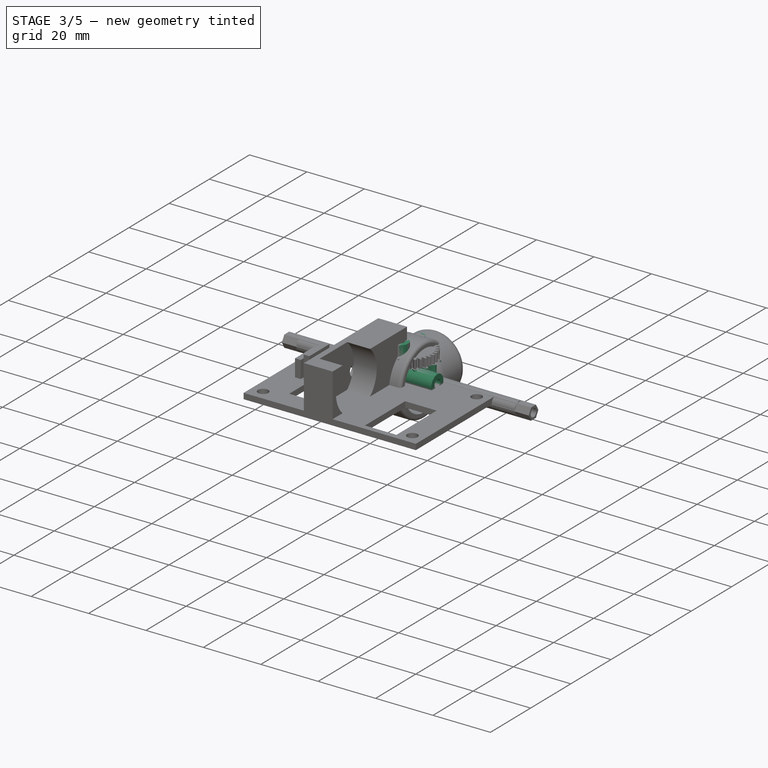
[diagram: stage 3 of 5 — iso view after this stage's code; geometry added in this stage tinted green]
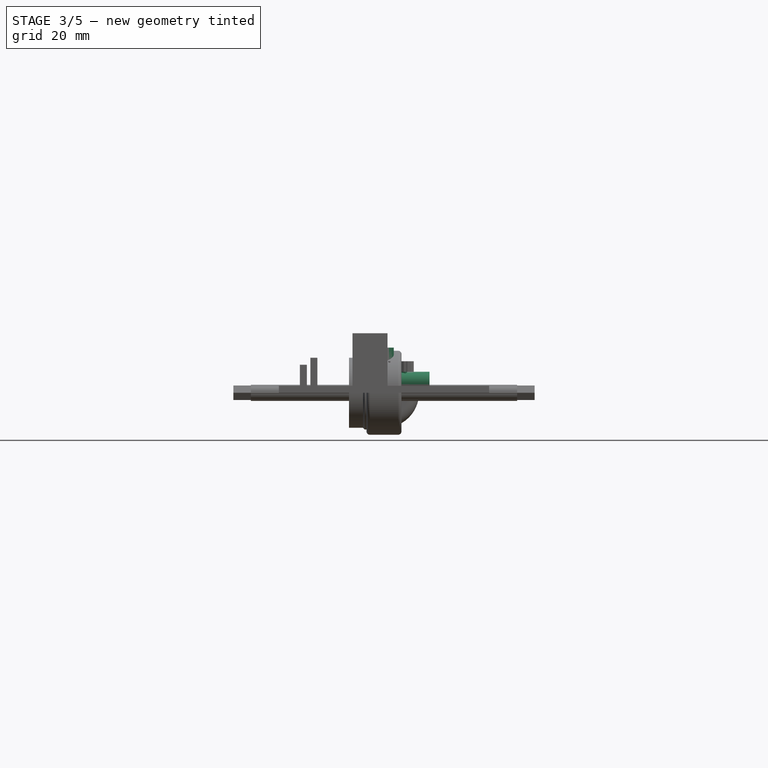
[diagram: stage 3 of 5 — front view after this stage's code; geometry added in this stage tinted green]
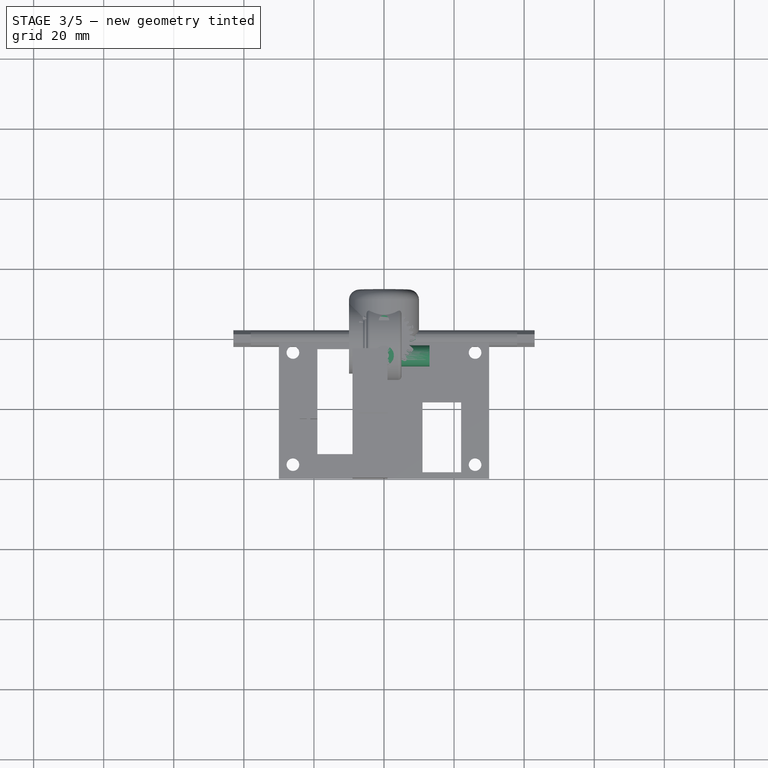
[diagram: stage 3 of 5 — top view after this stage's code; geometry added in this stage tinted green]
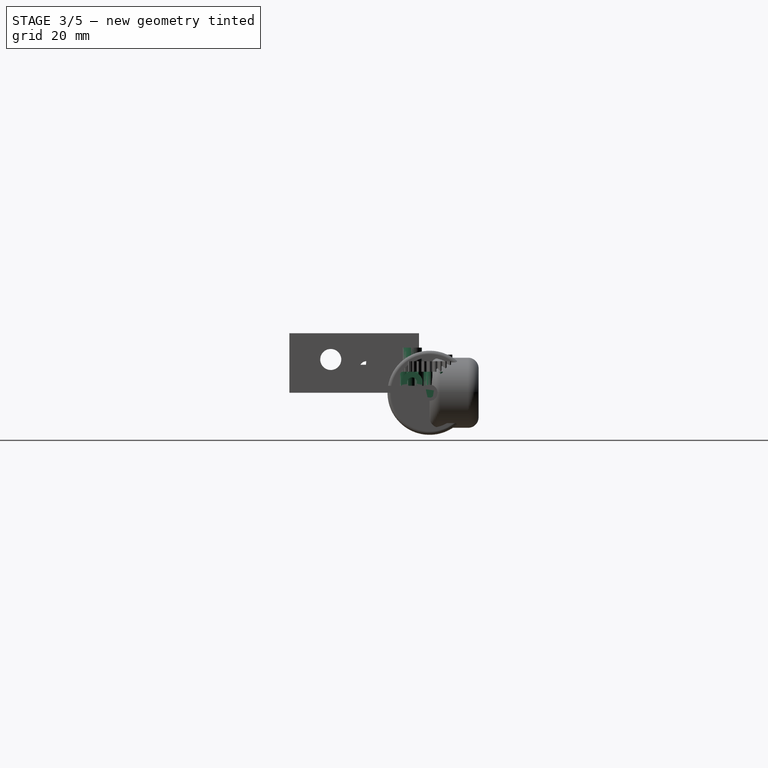
[diagram: stage 3 of 5 — right view after this stage's code; geometry added in this stage tinted green]
FEATURE [PartDesign::Body] Body003  label="steering_gear"
  Group = -> [InvoluteGear,Pad008,Sketch020,Pocket010]
  Origin = -> Origin003
  Placement = pos=(7,13,12) rot=(1,0,0;1.5708rad)
  Tip = -> Pocket010
FEATURE [Sketcher::SketchObject] Sketch021
  FullyConstrained = false
  MapMode = 5
  Support = -> [XY_Plane004]
  sketch-geometry (4):
    g0: LineSegment StartX=-3 StartY=8 StartZ=0 EndX=3 EndY=8 EndZ=0
    g1: LineSegment StartX=3 StartY=8 StartZ=0 EndX=3 EndY=-8 EndZ=0
    g2: LineSegment StartX=3 StartY=-8 StartZ=0 EndX=-3 EndY=-8 EndZ=0
    g3: LineSegment StartX=-3 StartY=-8 StartZ=0 EndX=-3 EndY=8 EndZ=0
  constraints (11):
    c: Coincident(g0,g1)
    c: Coincident(g1,g2)
    c: Coincident(g2,g3)
    c: Coincident(g3,g0)
    c: Horizontal(g0)
    c: Horizontal(g2)
    c: Vertical(g1)
    c: Vertical(g3)
    c: Symmetric(g0,g1,g-1)
    c: DistanceX(g2,g2) = 6
    c: DistanceY(g1,g1) = 16
FEATURE [PartDesign::Pad] Pad009
  AllowMultiFace = false
  Direction = (1,1,1)
  Length = 7.9
  Length2 = 100
  Profile = -> Sketch021
  Type = 0
FEATURE [Sketcher::SketchObject] Sketch022
  FullyConstrained = false
  MapMode = 5
  Placement = pos=(3,0,0) rot=(0.57735,0.57735,0.57735;2.0944rad)
  Support = -> [Pad009]
  sketch-geometry (1):
    g0: Circle CenterX=-5 CenterY=3 CenterZ=0 NormalX=0 NormalY=0 NormalZ=1 AngleXU=0 Radius=3
  constraints (3):
    c: DistanceY(g-1,g0) = 3
    c: DistanceX(g0,g-1) = 5
    c: Radius(g0) = 3
FEATURE [PartDesign::Pad] Pad010
  AllowMultiFace = false
  BaseFeature = -> Pad009
  Direction = (1,1,1)
  Length = 10
  Length2 = 100
  Profile = -> Sketch022
  Type = 0
FEATURE [Sketcher::SketchObject] Sketch023
  FullyConstrained = false
  MapMode = 5
  Placement = pos=(0,0,7.9) rot=(0,0,1;0rad)
  Support = -> [Pad010]
  sketch-geometry (1):
    g0: Circle CenterX=0 CenterY=-5 CenterZ=0 NormalX=0 NormalY=0 NormalZ=1 AngleXU=0 Radius=2.8
  constraints (3):
    c: PointOnObject(g0,g-2)
    c: DistanceY(g0,g-1) = 5
    c: Radius(g0) = 2.8
FEATURE [PartDesign::Pad] Pad011
  AllowMultiFace = false
  BaseFeature = -> Pad010
  Direction = (1,1,1)
  Length = 5
  Length2 = 100
  Profile = -> Sketch023
  Type = 0
FEATURE [Sketcher::SketchObject] Sketch024
  FullyConstrained = false
  MapMode = 5
  Placement = pos=(0,0,7.9) rot=(0,0,1;0rad)
  Support = -> [Pad011]
  sketch-geometry (1):
    g0: Circle CenterX=0 CenterY=5 CenterZ=0 NormalX=0 NormalY=0 NormalZ=1 AngleXU=0 Radius=1.5
  constraints (3):
    c: PointOnObject(g0,g-2)
    c: DistanceY(g-1,g0) = 5
    c: Radius(g0) = 1.5
FEATURE [PartDesign::Pad] Pad012
  AllowMultiFace = false
  BaseFeature = -> Pad011
  Direction = (1,1,1)
  Length = 3
  Length2 = 100
  Profile = -> Sketch024
  Type = 0
FEATURE [Sketcher::SketchObject] Sketch025
  ExternalGeometry = -> [Pad012]
  FullyConstrained = false
  MapMode = 5
  Placement = pos=(0,0,12.9) rot=(0,0,1;0rad)
  Support = -> [Pad012]
  expr: Constraints[1] = <<dimensions>>.screw_radius
  sketch-geometry (1):
    g0: Circle CenterX=0 CenterY=-5 CenterZ=0 NormalX=0 NormalY=0 NormalZ=1 AngleXU=0 Radius=1.4
  constraints (2):
    c: Coincident(g0,g-3)
    c: Radius(g0) = 1.4
FEATURE [PartDesign::Pocket] Pocket011
  AllowMultiFace = false
  BaseFeature = -> Pad012
  Length = 5
  Length2 = 100
  Profile = -> Sketch025
  Type = 1
FEATURE [Sketcher::SketchObject] Sketch026
  ExternalGeometry = -> [Pocket011]
  FullyConstrained = false
  MapMode = 5
  Placement = pos=(13,0,0) rot=(0.57735,0.57735,0.57735;2.0944rad)
  Support = -> [Pocket011]
  expr: Constraints[1] = <<dimensions>>.screw_radius
  sketch-geometry (1):
    g0: Circle CenterX=-5 CenterY=3 CenterZ=0 NormalX=0 NormalY=0 NormalZ=1 AngleXU=0 Radius=1.4
  constraints (2):
    c: Coincident(g0,g-3)
    c: Radius(g0) = 1.4
FEATURE [PartDesign::Pocket] Pocket012
  AllowMultiFace = false
  BaseFeature = -> Pocket011
  Length = 5
  Length2 = 100
  Profile = -> Sketch026
  Type = 1
FEATURE [PartDesign::Body] Body002  label="steering_link"
  Group = -> [Sketch017,Pad007,Sketch018,Pocket008,LinearPattern,Sketch019,Pocket009,Fillet,Fillet002,Chamfer]
  Origin = -> Origin002
  Placement = pos=(0,13,2) rot=(0,0,1;0rad)
  Tip = -> Chamfer
FEATURE [Sketcher::SketchObject] Sketch027
  FullyConstrained = false
  MapMode = 5
  Placement = pos=(0,0,0) rot=(0.57735,0.57735,0.57735;2.0944rad)
  Support = -> [YZ_Plane005]
  expr: Constraints[26] = <<dimensions>>.screw_radius_not_screwing
  sketch-geometry (11):
    g0: LineSegment StartX=0 StartY=3.2 StartZ=0 EndX=7 EndY=3.2 EndZ=0
    g1: LineSegment StartX=2 StartY=5.2 StartZ=0 EndX=2 EndY=7 EndZ=0
    g2: LineSegment StartX=0 StartY=3.2 StartZ=0 EndX=0 EndY=7 EndZ=0
    g3: LineSegment StartX=2 StartY=7 StartZ=0 EndX=14 EndY=7 EndZ=0
    g4: ArcOfCircle CenterX=11 CenterY=7 CenterZ=0 NormalX=0 NormalY=0 NormalZ=1 AngleXU=0 Radius=3 StartAngle=1e-16 EndAngle=1.5708
    g5: LineSegment StartX=3 StartY=10 StartZ=0 EndX=11 EndY=10 EndZ=0
    g6: ArcOfCircle CenterX=3 CenterY=7 CenterZ=0 NormalX=0 NormalY=0 NormalZ=1 AngleXU=0 Radius=3 StartAngle=1.5708 EndAngle=3.14159
    g7: LineSegment StartX=8.6 StartY=1.8 StartZ=0 EndX=8.6 EndY=5.2 EndZ=0
    g8: LineSegment StartX=8.6 StartY=5.2 StartZ=0 EndX=2 EndY=5.2 EndZ=0
    g9: LineSegment StartX=7 StartY=3.2 StartZ=0 EndX=7 EndY=1.8 EndZ=0
    g10: LineSegment StartX=7 StartY=1.8 StartZ=0 EndX=8.6 EndY=1.8 EndZ=0
  constraints (35):
    c: Vertical(g1)
    c: PointOnObject(g2,g-2)
    c: Coincident(g3,g1)
    c: Horizontal(g3)
    c: Coincident(g4,g3)
    c: Coincident(g5,g4)
    c: Tangent(g4,g5)
    c: DistanceX(g0,g0) = 7
    c: DistanceX(g5,g5) = 8
    c: DistanceX(g3,g3) = 12
    c: PointOnObject(g4,g3)
    c: Coincident(g6,g5)
    c: Coincident(g6,g2)
    c: PointOnObject(g6,g3)
    c: Equal(g6,g4)
    c: Horizontal(g5)
    c: Tangent(g6,g2)
    c: Horizontal(g0)
    c: Vertical(g2)
    c: DistanceY(g-1,g0) = 3.2
    c: Vertical(g7)
    c: Coincident(g8,g7)
    c: Coincident(g8,g1)
    c: Horizontal(g8)
    c: DistanceX(g2,g1) = 2
    c: DistanceY(g-1,g5) = 10
    c: DistanceY(g-1,g7) = 1.8
    c: Coincident(g9,g0)
    c: Vertical(g9)
    c: Coincident(g10,g9)
    c: Coincident(g10,g7)
    c: Horizontal(g10)
    c: DistanceY(g0,g7) = 2
    c: DistanceX(g10,g10) = 1.6
    c: Coincident(g0,g2)
FEATURE [PartDesign::Revolution] Revolution
  AllowMultiFace = false
  Angle = 360
  Axis = (3e-16,1,-2e-16)
  Base = (0,0,0)
  Placement = pos=(0,0,0) rot=(0.57735,0.57735,0.57735;2.0944rad)
  Profile = -> Sketch027
  ReferenceAxis = -> Sketch027 [H_Axis]
FEATURE [PartDesign::Chamfer] Chamfer002
  Angle = 45
  Base = -> Revolution [Edge7]
  BaseFeature = -> Revolution
  ChamferType = 0
  FlipDirection = false
  Placement = pos=(0,0,0) rot=(0.57735,0.57735,0.57735;2.0944rad)
  Size = 1.3
  Size2 = 1
  SupportTransform = false
FEATURE [Part::Part2DObjectPython] InvoluteGear001  # Draft 2D object (typed FeaturePython)
  ExternalGear = true
  HighPrecision = true
  Modules = 1
  NumberOfTeeth = 16
  PressureAngle = 20
FEATURE [PartDesign::Pad] Pad015
  AllowMultiFace = false
  Direction = (1,1,1)
  Length = 6
  Length2 = 100
  Profile = -> InvoluteGear001
  Type = 0
FEATURE [Sketcher::SketchObject] Sketch030
  FullyConstrained = false
  MapMode = 5
  Support = -> [XY_Plane007]
  sketch-geometry (7):
    g0: LineSegment StartX=2.5 StartY=0 StartZ=0 EndX=1.25 EndY=2.16506 EndZ=0
    g1: LineSegment StartX=1.25 StartY=2.16506 StartZ=0 EndX=-1.25 EndY=2.16506 EndZ=0
    g2: LineSegment StartX=-1.25 StartY=2.16506 StartZ=0 EndX=-2.5 EndY=-7.5e-15 EndZ=0
    g3: LineSegment StartX=-2.5 StartY=-7.5e-15 StartZ=0 EndX=-1.25 EndY=-2.16506 EndZ=0
    g4: LineSegment StartX=-1.25 StartY=-2.16506 StartZ=0 EndX=1.25 EndY=-2.16506 EndZ=0
    g5: LineSegment StartX=1.25 StartY=-2.16506 StartZ=0 EndX=2.5 EndY=0 EndZ=0
    g6: Circle CenterX=0 CenterY=0 CenterZ=0 NormalX=0 NormalY=0 NormalZ=1 AngleXU=0 Radius=2.5
  constraints (16):
    c: Coincident(g0,g1)
    c: Coincident(g1,g2)
    c: Coincident(g2,g3)
    c: Coincident(g3,g4)
    c: Coincident(g4,g5)
    c: Coincident(g5,g0)
    c: Equal(g0, g1-g5) x5
    c: PointOnObject(g0,g6)
    c: PointOnObject(g1,g6)
    c: PointOnObject(g2,g6)
    c: PointOnObject(g3,g6)
    c: PointOnObject(g4,g6)
    c: PointOnObject(g5,g6)
    c: Coincident(g6,g-1)
    c: PointOnObject(g5,g-1)
    c: DistanceX(g-1,g0) = 2.5
FEATURE [PartDesign::Pocket] Pocket013
  AllowMultiFace = false
  BaseFeature = -> Pad015
  Length = 5
  Length2 = 100
  Midplane = true
  Profile = -> Sketch030
  Type = 1
FEATURE [PartDesign::Pad] Pad013
  AllowMultiFace = false
  BaseFeature = -> Pocket015
  Direction = (1,1,1)
  Length = 76
  Length2 = 100
  Midplane = true
  Placement = pos=(0,0,0) rot=(0.57735,0.57735,0.57735;2.0944rad)
  Profile = -> Sketch028
  Type = 0
  expr: Length = <<dimensions>>.kart_width - 24
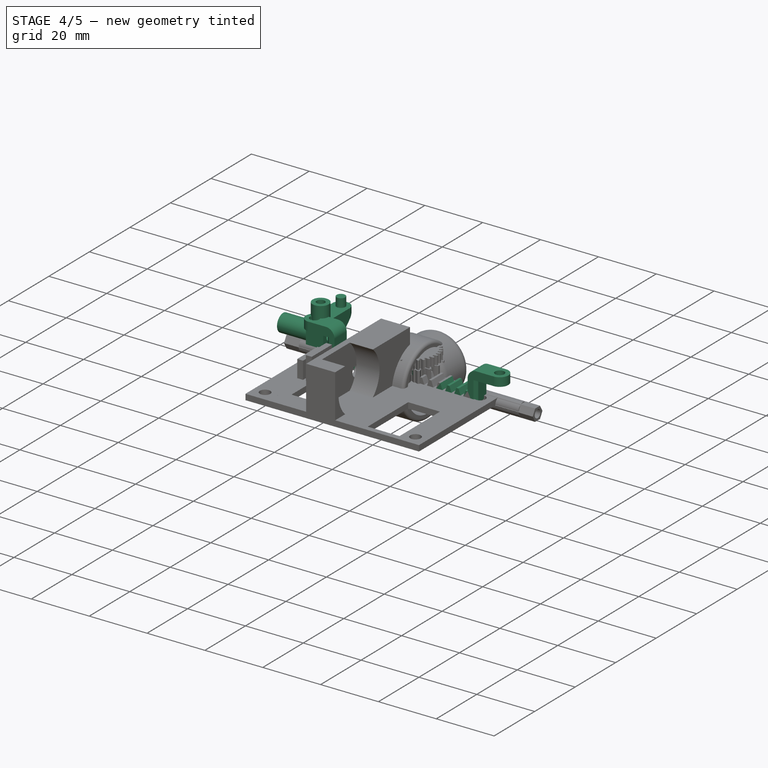
[diagram: stage 4 of 5 — iso view after this stage's code; geometry added in this stage tinted green]
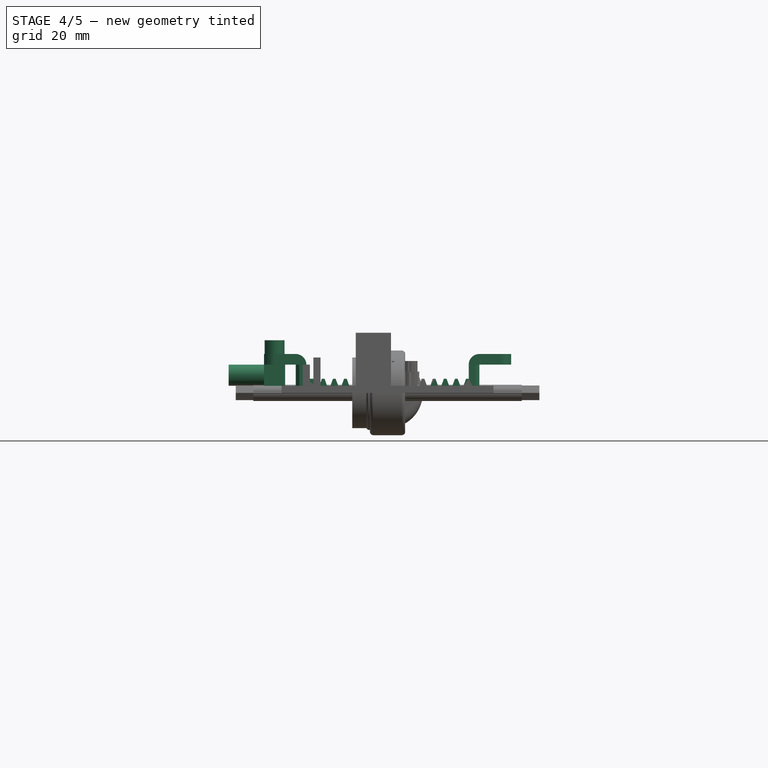
[diagram: stage 4 of 5 — front view after this stage's code; geometry added in this stage tinted green]
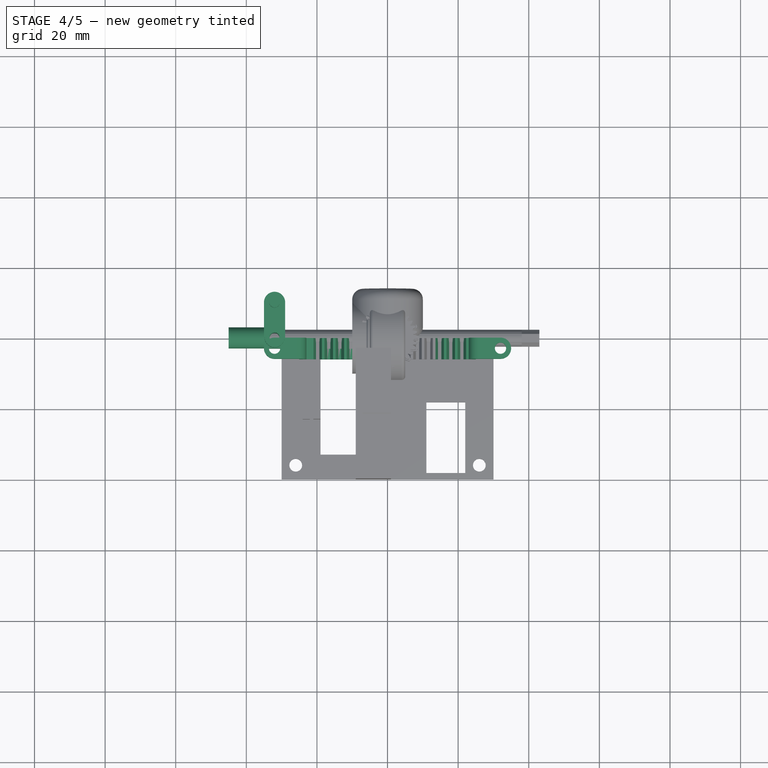
[diagram: stage 4 of 5 — top view after this stage's code; geometry added in this stage tinted green]
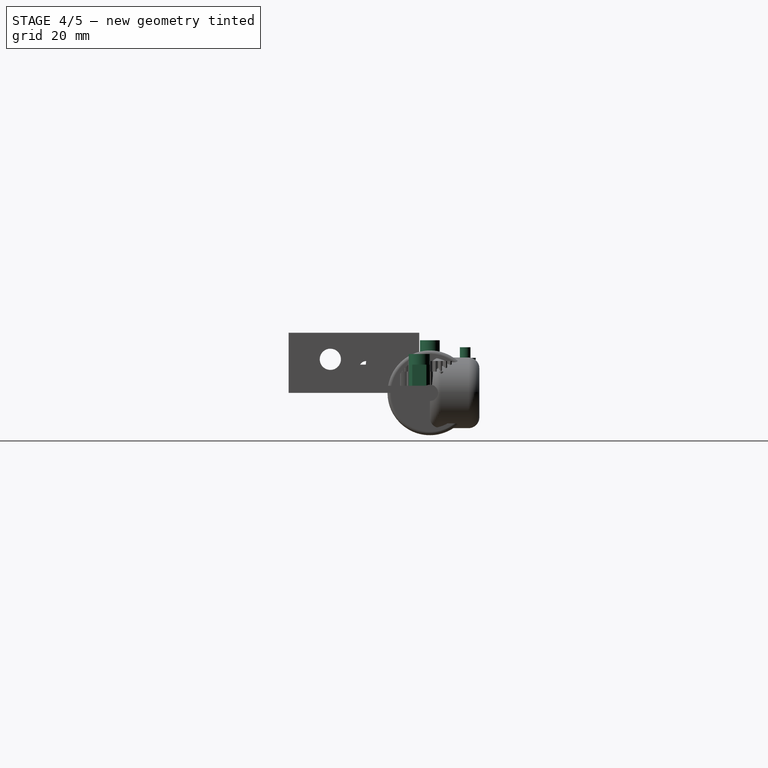
[diagram: stage 4 of 5 — right view after this stage's code; geometry added in this stage tinted green]
FEATURE [PartDesign::Body] Body001  label="front_upper"
  Group = -> [Sketch016,Pad006]
  Origin = -> Origin001
  Placement = pos=(0,0,10) rot=(0,0,1;0rad)
  Tip = -> Pad006
FEATURE [Sketcher::SketchObject] Sketch017
  FullyConstrained = false
  MapMode = 5
  Placement = pos=(0,0,0) rot=(1,0,0;1.5708rad)
  Support = -> [XZ_Plane002]
  expr: Constraints[24] = <<dimensions>>.kart_width - 2 * <<dimensions>>.f_ww_depth + 2
  sketch-geometry (12):
    g0: LineSegment StartX=-26 StartY=0 StartZ=0 EndX=26 EndY=0 EndZ=0
    g1: LineSegment StartX=26 StartY=0 StartZ=0 EndX=26 EndY=8 EndZ=0
    g2: LineSegment StartX=26 StartY=8 StartZ=0 EndX=35 EndY=8 EndZ=0
    g3: LineSegment StartX=35 StartY=8 StartZ=0 EndX=35 EndY=11 EndZ=0
    g4: LineSegment StartX=35 StartY=11 StartZ=0 EndX=23 EndY=11 EndZ=0
    g5: LineSegment StartX=23 StartY=11 StartZ=0 EndX=23 EndY=4 EndZ=0
    g6: LineSegment StartX=23 StartY=4 StartZ=0 EndX=-23 EndY=4 EndZ=0
    g7: LineSegment StartX=-23 StartY=4 StartZ=0 EndX=-23 EndY=11 EndZ=0
    g8: LineSegment StartX=-23 StartY=11 StartZ=0 EndX=-35 EndY=11 EndZ=0
    g9: LineSegment StartX=-35 StartY=11 StartZ=0 EndX=-35 EndY=8 EndZ=0
    g10: LineSegment StartX=-35 StartY=8 StartZ=0 EndX=-26 EndY=8 EndZ=0
    g11: LineSegment StartX=-26 StartY=8 StartZ=0 EndX=-26 EndY=0 EndZ=0
  constraints (35):
    c: Horizontal(g0)
    c: Vertical(g1)
    c: Vertical(g3)
    c: Vertical(g5)
    c: Horizontal(g6)
    c: Horizontal(g10)
    c: Vertical(g9)
    c: Vertical(g11)
    c: Vertical(g7)
    c: Horizontal(g8)
    c: Horizontal(g4)
    c: Horizontal(g2)
    c: Coincident(g8,g9)
    c: Coincident(g9,g10)
    c: Coincident(g11,g10)
    c: Coincident(g11,g0)
    c: Coincident(g7,g6)
    c: Coincident(g7,g8)
    c: Coincident(g5,g6)
    c: Coincident(g5,g4)
    c: Coincident(g1,g2)
    c: Coincident(g2,g3)
    c: Coincident(g3,g4)
    c: Coincident(g1,g0)
    c: DistanceX(g0,g0) = 52
    c: DistanceX(g4,g1) = 3
    c: Symmetric(g0,g0,g-1)
    c: DistanceY(g-1,g5) = 4
    c: DistanceY(g3,g3) = 3
    c: DistanceX(g2,g2) = 9
    c: DistanceY(g0,g1) = 8
    c: Equal(g5,g7)
    c: Equal(g3,g9)
    c: Equal(g2,g10)
    c: DistanceX(g10,g6) = 3
FEATURE [PartDesign::Pad] Pad007
  AllowMultiFace = false
  Direction = (1,1,1)
  Length = 6
  Length2 = 100
  Placement = pos=(0,0,0) rot=(1,0,0;1.5708rad)
  Profile = -> Sketch017
  Type = 0
FEATURE [Sketcher::SketchObject] Sketch018
  ExternalGeometry = -> [Pad007]
  FullyConstrained = false
  MapMode = 5
  Placement = pos=(0,0,0) rot=(1,0,0;1.5708rad)
  Support = -> [XZ_Plane002]
  sketch-geometry (9):
    g0: LineSegment StartX=22.2481 StartY=4 StartZ=0 EndX=21.4292 EndY=1.75 EndZ=0
    g1: LineSegment StartX=20.6773 StartY=1.75 StartZ=0 EndX=19.8584 EndY=4 EndZ=0
    g2: LineSegment StartX=-23 StartY=4 StartZ=0 EndX=23 EndY=4 EndZ=0
    g3: LineSegment StartX=23 StartY=1.75 StartZ=0 EndX=-23 EndY=1.75 EndZ=0
    g4: LineSegment StartX=-23 StartY=1.75 StartZ=0 EndX=-23 EndY=4 EndZ=0
    g5: LineSegment StartX=20.6773 StartY=1.75 StartZ=0 EndX=21.4292 EndY=1.75 EndZ=0
    g6: LineSegment StartX=22.2481 StartY=4 StartZ=0 EndX=23 EndY=4 EndZ=0
    g7: LineSegment StartX=19.8584 StartY=4 StartZ=0 EndX=22.2481 EndY=4 EndZ=0
    g8: LineSegment StartX=23 StartY=4 StartZ=0 EndX=23 EndY=1.75 EndZ=0
  constraints (24):
    c: Coincident(g3,g4)
    c: Coincident(g4,g2)
    c: Horizontal(g3)
    c: Vertical(g4)
    c: Coincident(g2,g-3)
    c: DistanceY(g3,g2) = 2.25
    c: PointOnObject(g0,g3)
    c: PointOnObject(g1,g3)
    c: Angle(g1,g3) = 1.22173
    c: PointOnObject(g1,g2)
    c: Coincident(g5,g1)
    c: Coincident(g5,g0)
    c: Equal(g6,g5)
    c: Coincident(g2,g-3)
    c: Coincident(g6,g0)
    c: Coincident(g6,g2)
    c: Coincident(g7,g1)
    c: Coincident(g7,g0)
    c: PointOnObject(g0,g2)
    c: Coincident(g8,g2)
    c: Coincident(g8,g3)
    c: Vertical(g8)
    c: Angle(g0,g8) = 0.349066
    c: DistanceX(g1,g2) = 3.14159
FEATURE [PartDesign::Pocket] Pocket008
  AllowMultiFace = false
  BaseFeature = -> Pad007
  Length = 5
  Length2 = 100
  Placement = pos=(0,0,0) rot=(1,0,0;1.5708rad)
  Profile = -> Sketch018
  Reversed = true
  Type = 1
FEATURE [PartDesign::LinearPattern] LinearPattern
  BaseFeature = -> Pocket008
  Direction = -> X_Axis002
  Length = 40.8407
  Occurrences = 14
  Originals = -> [Pocket008]
  Placement = pos=(0,0,0) rot=(1,0,0;1.5708rad)
  Reversed = true
  expr: Length = 13 * pi
FEATURE [Sketcher::SketchObject] Sketch019
  ExternalGeometry = -> [LinearPattern]
  FullyConstrained = false
  MapMode = 5
  Placement = pos=(0,0,11) rot=(0,0,1;3.14159rad)
  Support = -> [LinearPattern]
  sketch-geometry (2):
    g0: Circle CenterX=32 CenterY=3 CenterZ=0 NormalX=0 NormalY=0 NormalZ=1 AngleXU=0 Radius=1.6
    g1: Circle CenterX=-32 CenterY=3 CenterZ=0 NormalX=0 NormalY=0 NormalZ=1 AngleXU=0 Radius=1.6
  constraints (6):
    c: Radius(g1) = 1.6
    c: Radius(g0) = 1.6
    c: DistanceX(g0,g-3) = 3
    c: DistanceX(g-4,g1) = 3
    c: DistanceY(g-4,g1) = 3
    c: DistanceY(g-3,g0) = 3
FEATURE [PartDesign::Pocket] Pocket009
  AllowMultiFace = false
  BaseFeature = -> LinearPattern
  Length = 5
  Length2 = 100
  Placement = pos=(0,0,0) rot=(1,0,0;1.5708rad)
  Profile = -> Sketch019
  Type = 1
FEATURE [PartDesign::Fillet] Fillet
  Base = -> Pocket009 [Edge39,Edge105,Edge36,Edge102]
  BaseFeature = -> Pocket009
  Placement = pos=(0,0,0) rot=(1,0,0;1.5708rad)
  Radius = 2.99
  SupportTransform = false
FEATURE [PartDesign::Body] Body  label="base"
  Group = -> [Sketch,Pad,Pad001,Pad002,Pad003,Pocket,Pad004,Pocket002,Pocket003,Pocket006,Sketch001,Sketch003,Sketch004,Sketch008,Sketch006,Sketch010,Sketch011,Sketch014,Pocket007,Fillet001,Sketch015]
  Origin = -> Origin
  Tip = -> Fillet001
FEATURE [Part::Part2DObjectPython] InvoluteGear  # Draft 2D object (typed FeaturePython)
  ExternalGear = true
  HighPrecision = true
  Modules = 1
  NumberOfTeeth = 14
  PressureAngle = 20
FEATURE [PartDesign::Pad] Pad008
  AllowMultiFace = false
  Direction = (1,1,1)
  Length = 6
  Length2 = 100
  Profile = -> InvoluteGear
  Type = 0
FEATURE [Sketcher::SketchObject] Sketch020
  FullyConstrained = false
  MapMode = 5
  Placement = pos=(0,0,6) rot=(0,0,1;0rad)
  Support = -> [Pad008]
  expr: Constraints[1] = <<dimensions>>.servo_axle_diameter / 2
  sketch-geometry (1):
    g0: Circle CenterX=0 CenterY=0 CenterZ=0 NormalX=0 NormalY=0 NormalZ=1 AngleXU=0 Radius=2.85
  constraints (2):
    c: Coincident(g0,g-1)
    c: Radius(g0) = 2.85
FEATURE [PartDesign::Pocket] Pocket010
  AllowMultiFace = false
  BaseFeature = -> Pad008
  Length = 5
  Length2 = 100
  Profile = -> Sketch020
  Type = 1
FEATURE [PartDesign::Fillet] Fillet002
  Base = -> Fillet [Edge73,Edge109]
  BaseFeature = -> Fillet
  Placement = pos=(0,0,0) rot=(1,0,0;1.5708rad)
  Radius = 3
  SupportTransform = false
FEATURE [PartDesign::Chamfer] Chamfer
  Angle = 45
  Base = -> Fillet002 [Edge7,Edge91,Edge11,Edge99,Edge90,Edge94]
  BaseFeature = -> Fillet002
  ChamferType = 0
  FlipDirection = false
  Placement = pos=(0,0,0) rot=(1,0,0;1.5708rad)
  Size = 1
  Size2 = 1
  SupportTransform = false
FEATURE [PartDesign::Chamfer] Chamfer001
  Angle = 45
  Base = -> Pocket012 [Edge3]
  BaseFeature = -> Pocket012
  ChamferType = 0
  FlipDirection = false
  Size = 7.4
  Size2 = 1
  SupportTransform = false
FEATURE [PartDesign::Fillet] Fillet003
  Base = -> Chamfer001 [Edge1,Edge4]
  BaseFeature = -> Chamfer001
  Radius = 2.99
  SupportTransform = false
FEATURE [PartDesign::Body] Body004  label="steering_axle"
  Group = -> [Sketch021,Pad009,Sketch022,Pad010,Sketch023,Pad011,Sketch024,Pad012,Sketch025,Pocket011,Sketch026,Pocket012,Chamfer001,Fillet003]
  Origin = -> Origin004
  Placement = pos=(32,5,2) rot=(0,0,1;0rad)
  Tip = -> Fillet003
FEATURE [Part::Mirroring] Part__Mirroring  label="steering_axle (Mirror #1)"
  Base = (0,5,8.5)
  Normal = (1,0,-1.19209e-07)
  Source = -> Body004
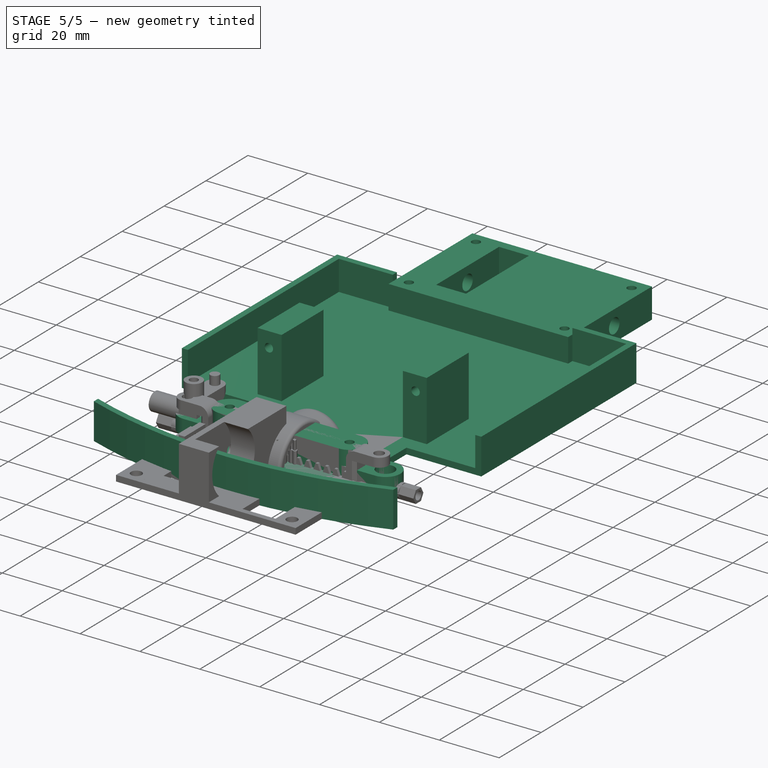
[diagram: stage 5 of 5 — iso view after this stage's code; geometry added in this stage tinted green]
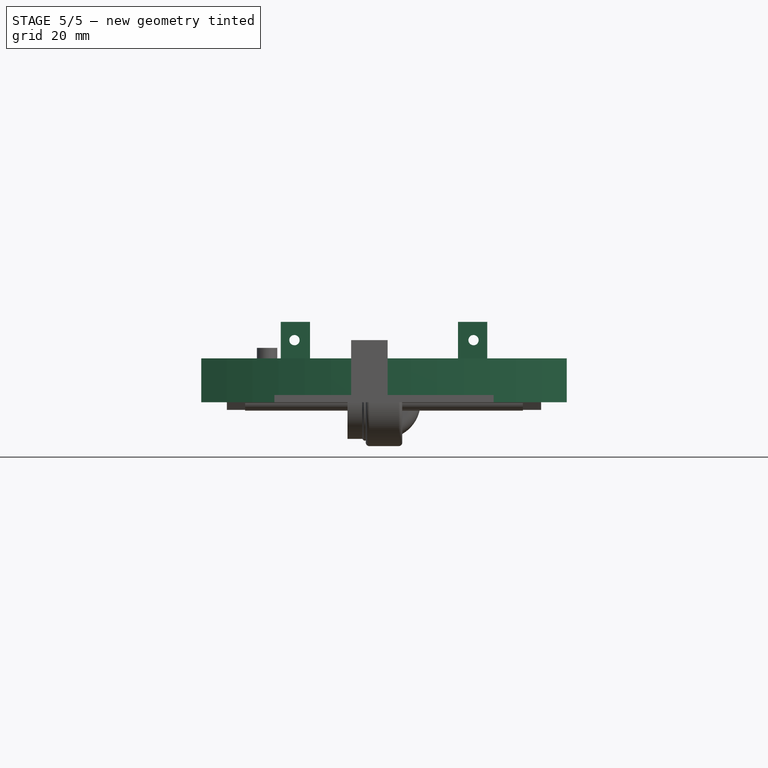
[diagram: stage 5 of 5 — front view after this stage's code; geometry added in this stage tinted green]
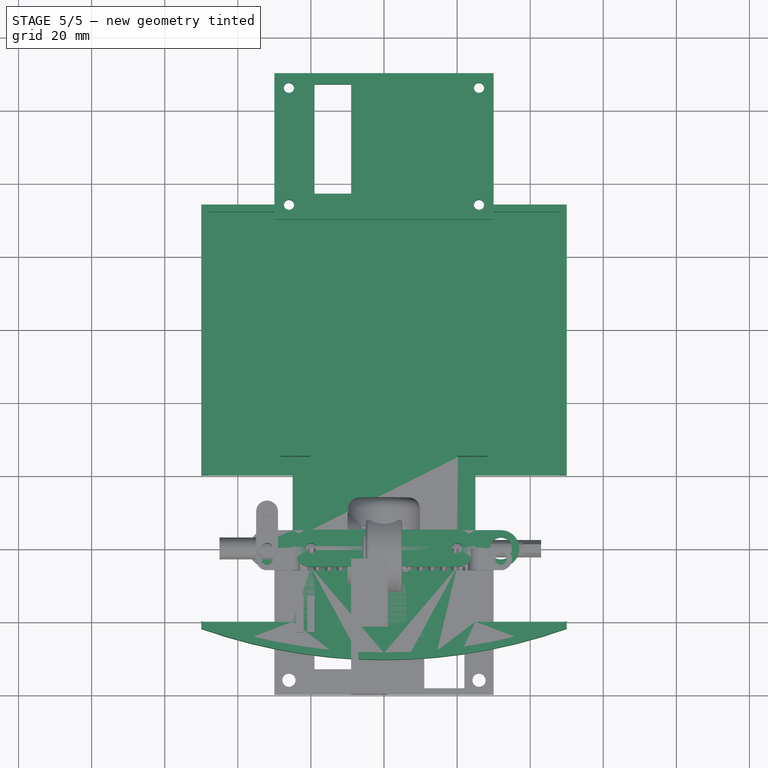
[diagram: stage 5 of 5 — top view after this stage's code; geometry added in this stage tinted green]
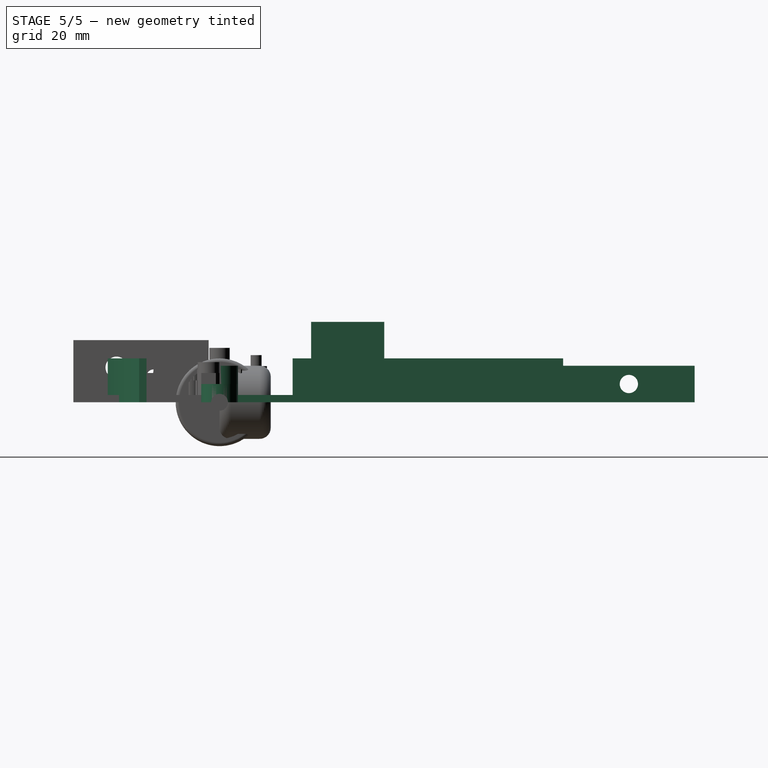
[diagram: stage 5 of 5 — right view after this stage's code; geometry added in this stage tinted green]
FEATURE [Sketcher::SketchObject] Sketch  label="base_sketch"
  FullyConstrained = false
  MapMode = 5
  Support = -> [XY_Plane]
  expr: Constraints[33] = <<dimensions>>.kart_width
  expr: Constraints[22] = Spreadsheet.f_ww_length
  expr: Constraints[41] = <<dimensions>>.kart_length
  expr: Constraints[23] = <<dimensions>>.b_ww_length
  expr: Constraints[34] = <<dimensions>>.b_ww_depth
  expr: Constraints[21] = <<dimensions>>.f_ww_depth
  sketch-geometry (16):
    g0: LineSegment StartX=-50 StartY=-20 StartZ=0 EndX=-25 EndY=-20 EndZ=0
    g1: LineSegment StartX=-25 StartY=-20 StartZ=0 EndX=-25 EndY=20 EndZ=0
    g2: LineSegment StartX=-25 StartY=20 StartZ=0 EndX=-50 EndY=20 EndZ=0
    g3: LineSegment StartX=-50 StartY=20 StartZ=0 EndX=-50 EndY=94 EndZ=0
    g4: LineSegment StartX=-50 StartY=94 StartZ=0 EndX=-30 EndY=94 EndZ=0
    g5: LineSegment StartX=-30 StartY=94 StartZ=0 EndX=-30 EndY=130 EndZ=0
    g6: LineSegment StartX=30 StartY=130 StartZ=0 EndX=30 EndY=94 EndZ=0
    g7: LineSegment StartX=30 StartY=94 StartZ=0 EndX=50 EndY=94 EndZ=0
    g8: LineSegment StartX=50 StartY=94 StartZ=0 EndX=50 EndY=20 EndZ=0
    g9: LineSegment StartX=50 StartY=20 StartZ=0 EndX=25 EndY=20 EndZ=0
    g10: LineSegment StartX=25 StartY=20 StartZ=0 EndX=25 EndY=-20 EndZ=0
    g11: LineSegment StartX=25 StartY=-20 StartZ=0 EndX=50 EndY=-20 EndZ=0
    g12: LineSegment StartX=-30 StartY=130 StartZ=0 EndX=30 EndY=130 EndZ=0
    g13: ArcOfCircle CenterX=-1.8e-15 CenterY=119.421 CenterZ=0 NormalX=0 NormalY=0 NormalZ=1 AngleXU=0 Radius=150 StartAngle=4.37255 EndAngle=5.05223
    g14: LineSegment StartX=50 StartY=-20 StartZ=0 EndX=50 EndY=-22 EndZ=0
    g15: LineSegment StartX=-50 StartY=-22 StartZ=0 EndX=-50 EndY=-20 EndZ=0
  constraints (48):
    c: Vertical(g3)
    c: Vertical(g8)
    c: Vertical(g10)
    c: Vertical(g1)
    c: Vertical(g6)
    c: Vertical(g5)
    c: Horizontal(g7)
    c: Horizontal(g4)
    c: Horizontal(g2)
    c: Horizontal(g9)
    c: Horizontal(g11)
    c: Horizontal(g0)
    c: Coincident(g11,g10)
    c: Coincident(g0,g1)
    c: Coincident(g1,g2)
    c: Coincident(g3,g2)
    c: Coincident(g3,g4)
    c: Coincident(g5,g4)
    c: Coincident(g6,g7)
    c: Coincident(g8,g7)
    c: Coincident(g10,g9)
    c: Distance(g2) = 25
    c: Distance(g1) = 40
    c: Distance(g5) = 36
    c: Equal(g2,g0)
    c: Equal(g2,g9)
    c: Equal(g0,g11)
    c: Equal(g4,g7)
    c: Coincident(g8,g9)
    c: Equal(g1,g10)
    c: Equal(g5,g6)
    c: Coincident(g12,g5)
    c: Coincident(g6,g12)
    c: Distance(g8,g3) = 100
    c: Distance(g4) = 20
    c: Equal(g3,g8)
    c: Radius(g13) = 150
    c: Horizontal(g12)
    c: Coincident(g14,g13)
    c: Coincident(g14,g11)
    c: Vertical(g14)
    c: Distance(g0,g12) = 150
    c: Coincident(g15,g13)
    c: Vertical(g15)
    c: Equal(g15,g14)
    c: Distance(g15) = 2
    c: Coincident(g15,g0)
    c: Symmetric(g1,g10,g-1)
FEATURE [PartDesign::Pad] Pad  label="base_pad"
  AllowMultiFace = false
  Direction = (1,1,1)
  Length = 2
  Length2 = 100
  Profile = -> Sketch
  Type = 0
FEATURE [Spreadsheet::Sheet] Spreadsheet  label="dimensions"
  cells = A1=Servo Dimensions (mm); D1=Screw; A2=Width; B2(servo_width)=40.5; D2=Radius; E2(screw_radius)=1.4; A3=Height; B3(servo_height)=20; D3=Radius (not screwing); E3(screw_radius_not_screwing)=1.8; A4=Length; B4(servo_length)=25; A5=FrontLength; B5(servo_f_length)=10; A6=Axle to Side; B6(servo_axle_to_side)=10; A7=Axle Diameter; B7(servo_axle_diameter)=5.7; A8=Mount Length; B8(servo_m_length)=8; A9=Mount Hole to Top; B9(servo_m_hole_to_top)=5; A10=Mount Hole to Side; B10(servo_m_hole_to_side)=4.25; A13=Kart Dimensions (mm); D13=Motor Dimensions; A14=Length; B14(kart_length)=150; D14=Length; A15=Width; B15(kart_width)=100; D15=Diameter; E15(motor_diameter)=20.3; A16=Front Wheelwell Length; B16(f_ww_length)=40; D16=Height; E16(motor_height)=15; A17=Front Wheelwell Depth; B17(f_ww_depth)=25; D17=Axle Diameter; E17(motor_axle_diameter)=2.2; A18=Back Wheelwell Length; B18(b_ww_length)=36; D18=Front Diameter; E18(motor_front_diameter)=6; A19=Back Wheelwell Depth; B19(b_ww_depth)=20; D19=Front Length; E19(motor_front_length)=2
FEATURE [Sketcher::SketchObject] Sketch001  label="walls_sketch"
  ExternalGeometry = -> [Pad]
  FullyConstrained = true
  MapMode = 5
  Placement = pos=(0,0,2) rot=(0,0,1;0rad)
  Support = -> [Pad]
  sketch-geometry (16):
    g0: LineSegment StartX=-48 StartY=92 StartZ=0 EndX=-48 EndY=20 EndZ=0
    g1: LineSegment StartX=-48 StartY=20 StartZ=0 EndX=-50 EndY=20 EndZ=0
    g2: LineSegment StartX=-50 StartY=20 StartZ=0 EndX=-50 EndY=94 EndZ=0
    g3: LineSegment StartX=48 StartY=92 StartZ=0 EndX=48 EndY=20 EndZ=0
    g4: LineSegment StartX=48 StartY=20 StartZ=0 EndX=50 EndY=20 EndZ=0
    g5: LineSegment StartX=50 StartY=20 StartZ=0 EndX=50 EndY=94 EndZ=0
    g6: LineSegment StartX=50 StartY=94 StartZ=0 EndX=30 EndY=94 EndZ=0
    g7: ArcOfCircle CenterX=2.79984e-11 CenterY=121.421 CenterZ=0 NormalX=0 NormalY=0 NormalZ=1 AngleXU=0 Radius=150 StartAngle=4.37255 EndAngle=5.05223
    g8: LineSegment StartX=-50 StartY=-20 StartZ=0 EndX=-50 EndY=-22 EndZ=0
    g9: LineSegment StartX=50 StartY=-20 StartZ=0 EndX=50 EndY=-22 EndZ=0
    g10: ArcOfCircle CenterX=4.0481e-12 CenterY=119.421 CenterZ=0 NormalX=0 NormalY=0 NormalZ=1 AngleXU=0 Radius=150 StartAngle=4.37255 EndAngle=5.05223
    g11: LineSegment StartX=-50 StartY=94 StartZ=0 EndX=-30 EndY=94 EndZ=0
    g12: LineSegment StartX=30 StartY=94 StartZ=0 EndX=30 EndY=92 EndZ=0
    g13: LineSegment StartX=30 StartY=92 StartZ=0 EndX=48 EndY=92 EndZ=0
    g14: LineSegment StartX=-48 StartY=92 StartZ=0 EndX=-30 EndY=92 EndZ=0
    g15: LineSegment StartX=-30 StartY=92 StartZ=0 EndX=-30 EndY=94 EndZ=0
  constraints (40):
    c: PointOnObject(g0,g-11)
    c: Vertical(g0)
    c: Distance(g-12,g0) = 2
    c: Coincident(g2,g1)
    c: Coincident(g1,g0)
    c: Coincident(g-12,g1)
    c: Coincident(g6,g5)
    c: Coincident(g4,g3)
    c: Vertical(g3)
    c: PointOnObject(g3,g-10)
    c: Coincident(g-18,g5)
    c: Distance(g4) = 2
    c: Equal(g7,g-5)
    c: Coincident(g7,g-8)
    c: Coincident(g7,g9)
    c: Coincident(g9,g10)
    c: Equal(g-5,g10)
    c: Coincident(g9,g-7)
    c: Coincident(g10,g-6)
    c: Coincident(g8,g10)
    c: Coincident(g4,g5)
    c: Coincident(g4,g-18)
    c: Coincident(g-6,g7)
    c: Coincident(g8,g7)
    c: Coincident(g6,g-17)
    c: Coincident(g11,g-14)
    c: Vertical(g12)
    c: Horizontal(g13)
    c: DistanceY(g12,g12) = 2
    c: Coincident(g12,g6)
    c: Coincident(g12,g13)
    c: Coincident(g13,g3)
    c: Vertical(g15)
    c: Coincident(g15,g11)
    c: Coincident(g14,g15)
    c: DistanceY(g15,g15) = 2
    c: Horizontal(g14)
    c: Coincident(g0,g14)
    c: Coincident(g2,g11)
    c: Coincident(g-13,g2)
FEATURE [PartDesign::Pad] Pad001  label="walls_pad"
  AllowMultiFace = false
  BaseFeature = -> Pad
  Direction = (1,1,1)
  Length = 10
  Length2 = 100
  Profile = -> Sketch001
  Type = 0
FEATURE [Sketcher::SketchObject] Sketch003  label="f_axle_mount_sketch"
  ExternalGeometry = -> [Pad001]
  FullyConstrained = true
  MapMode = 5
  Placement = pos=(0,0,2) rot=(0,0,1;0rad)
  Support = -> [Pad001]
  sketch-geometry (5):
    g0: GeomPoint X=-25 Y=6.3e-15 Z=0
    g1: LineSegment StartX=-25 StartY=5.065 StartZ=0 EndX=25 EndY=5.065 EndZ=0
    g2: LineSegment StartX=25 StartY=-5.065 StartZ=0 EndX=-25 EndY=-5.065 EndZ=0
    g3: LineSegment StartX=25 StartY=5.065 StartZ=0 EndX=25 EndY=-5.065 EndZ=0
    g4: LineSegment StartX=-25 StartY=-5.065 StartZ=0 EndX=-25 EndY=5.065 EndZ=0
  constraints (12):
    c: Symmetric(g-3,g-3,g0)
    c: PointOnObject(g2,g-3)
    c: PointOnObject(g1,g-4)
    c: PointOnObject(g2,g-4)
    c: DistanceY(g2,g1) = 10.13
    c: Symmetric(g1,g2,g0)
    c: Horizontal(g1)
    c: Horizontal(g2)
    c: Coincident(g4,g1)
    c: Coincident(g4,g2)
    c: Coincident(g3,g1)
    c: Coincident(g3,g2)
FEATURE [PartDesign::Pad] Pad002  label="f_axle_mount_pad"
  AllowMultiFace = false
  BaseFeature = -> Pad001
  Direction = (1,1,1)
  Length = 8
  Length2 = 100
  Profile = -> Sketch003
  Type = 0
FEATURE [Sketcher::SketchObject] Sketch004  label="steering_servo_mount_sketch"
  ExternalGeometry = -> [Pad002]
  FullyConstrained = true
  MapMode = 5
  Placement = pos=(0,0,2) rot=(0,0,1;0rad)
  Support = -> [Pad002]
  expr: Constraints[12] = <<dimensions>>.servo_width
  expr: Constraints[14] = 10 + <<dimensions>>.servo_f_length
  expr: Constraints[9] = <<dimensions>>.servo_length - 5
  expr: Constraints[8] = <<dimensions>>.servo_m_length
  sketch-geometry (8):
    g0: LineSegment StartX=-28.25 StartY=45.065 StartZ=0 EndX=-20.25 EndY=45.065 EndZ=0
    g1: LineSegment StartX=-20.25 StartY=45.065 StartZ=0 EndX=-20.25 EndY=25.065 EndZ=0
    g2: LineSegment StartX=-20.25 StartY=25.065 StartZ=0 EndX=-28.25 EndY=25.065 EndZ=0
    g3: LineSegment StartX=-28.25 StartY=25.065 StartZ=0 EndX=-28.25 EndY=45.065 EndZ=0
    g4: LineSegment StartX=20.25 StartY=45.065 StartZ=0 EndX=28.25 EndY=45.065 EndZ=0
    g5: LineSegment StartX=28.25 StartY=45.065 StartZ=0 EndX=28.25 EndY=25.065 EndZ=0
    g6: LineSegment StartX=28.25 StartY=25.065 StartZ=0 EndX=20.25 EndY=25.065 EndZ=0
    g7: LineSegment StartX=20.25 StartY=25.065 StartZ=0 EndX=20.25 EndY=45.065 EndZ=0
  constraints (24):
    c: Horizontal(g0)
    c: Horizontal(g2)
    c: Vertical(g1)
    c: Vertical(g3)
    c: Horizontal(g4)
    c: Horizontal(g6)
    c: Vertical(g5)
    c: Vertical(g7)
    c: DistanceX(g2,g2) = 8
    c: DistanceY(g3,g3) = 20
    c: Equal(g3,g7)
    c: Equal(g2,g6)
    c: DistanceX(g1,g6) = 40.5
    c: DistanceY(g-3,g-3) = 0
    c: DistanceY(g-3,g1) = 20
    c: Symmetric(g1,g6,g-2)
    c: Coincident(g0,g1)
    c: Coincident(g6,g7)
    c: Coincident(g6,g5)
    c: Coincident(g4,g5)
    c: Coincident(g4,g7)
    c: Coincident(g2,g1)
    c: Coincident(g2,g3)
    c: Coincident(g0,g3)
FEATURE [PartDesign::Pad] Pad003  label="steering_servo_mounts_pad"
  AllowMultiFace = false
  BaseFeature = -> Pad002
  Direction = (1,1,1)
  Length = 20
  Length2 = 100
  Profile = -> Sketch004
  Type = 0
  expr: Length = <<dimensions>>.servo_height
FEATURE [Sketcher::SketchObject] Sketch006  label="b_axle_mount_sketch"
  FullyConstrained = true
  MapMode = 5
  Placement = pos=(0,0,2) rot=(0,0,1;0rad)
  Support = -> [Pad003]
  expr: Constraints[9] = <<dimensions>>.kart_length - <<dimensions>>.f_ww_length / 2
  expr: Constraints[5] = <<dimensions>>.kart_width - <<dimensions>>.b_ww_depth * 2
  sketch-geometry (4):
    g0: LineSegment StartX=30 StartY=90 StartZ=0 EndX=30 EndY=130 EndZ=0
    g1: LineSegment StartX=-30 StartY=130 StartZ=0 EndX=30 EndY=130 EndZ=0
    g2: LineSegment StartX=-30 StartY=90 StartZ=0 EndX=-30 EndY=130 EndZ=0
    g3: LineSegment StartX=-30 StartY=90 StartZ=0 EndX=30 EndY=90 EndZ=0
  constraints (11):
    c: Coincident(g2,g1)
    c: Coincident(g1,g0)
    c: Vertical(g2)
    c: Vertical(g0)
    c: DistanceY(g0,g0) = 40
    c: DistanceX(g1,g1) = 60
    c: Coincident(g3,g0)
    c: Coincident(g3,g2)
    c: Horizontal(g3)
    c: DistanceY(g-1,g0) = 130
    c: Symmetric(g1,g0,g-2)
FEATURE [Sketcher::SketchObject] Sketch008
  FullyConstrained = true
  MapMode = 5
  Placement = pos=(0,25.065,0) rot=(1,0,0;1.5708rad)
  Support = -> [Pad003]
  expr: Constraints[2] = 2 + <<dimensions>>.servo_height - <<dimensions>>.servo_m_hole_to_top
  expr: Constraints[1] = <<dimensions>>.servo_width / 2 + <<dimensions>>.servo_m_hole_to_side
  expr: Constraints[0] = Spreadsheet.screw_radius
  sketch-geometry (2):
    g0: Circle CenterX=24.5 CenterY=17 CenterZ=0 NormalX=0 NormalY=0 NormalZ=1 AngleXU=0 Radius=1.4
    g1: Circle CenterX=-24.5 CenterY=17 CenterZ=0 NormalX=0 NormalY=0 NormalZ=1 AngleXU=0 Radius=1.4
  constraints (5):
    c: Radius(g0) = 1.4
    c: DistanceX(g-1,g0) = 24.5
    c: DistanceY(g-1,g0) = 17
    c: Equal(g1,g0)
    c: Symmetric(g1,g0,g-2)
FEATURE [PartDesign::Pocket] Pocket  label="steering_servo_mount_screws"
  AllowMultiFace = false
  BaseFeature = -> Pad003
  Length = 5
  Length2 = 100
  Profile = -> Sketch008
  Type = 1
FEATURE [PartDesign::Pad] Pad004  label="b_axle_mount_pad"
  AllowMultiFace = false
  BaseFeature = -> Pocket
  Direction = (1,1,1)
  Length = 8
  Length2 = 100
  Profile = -> Sketch006
  Type = 0
FEATURE [Sketcher::SketchObject] Sketch010
  FullyConstrained = true
  MapMode = 5
  Placement = pos=(-30,0,0) rot=(0.57735,-0.57735,-0.57735;2.0944rad)
  expr: Constraints[1] = <<dimensions>>.kart_length - <<dimensions>>.f_ww_length / 2 - <<dimensions>>.b_ww_length / 2
  sketch-geometry (1):
    g0: Circle CenterX=-112 CenterY=5 CenterZ=0 NormalX=0 NormalY=0 NormalZ=1 AngleXU=0 Radius=2.5
  constraints (3):
    c: Radius(g0) = 2.5
    c: DistanceX(g0,g-1) = 112
    c: DistanceY(g-1,g0) = 5
FEATURE [PartDesign::Pocket] Pocket002  label="b_axle_hole"
  AllowMultiFace = false
  BaseFeature = -> Pad004
  Length = 5
  Length2 = 100
  Profile = -> Sketch010
  Type = 1
FEATURE [Sketcher::SketchObject] Sketch011
  ExternalGeometry = -> [Pocket002]
  FullyConstrained = true
  MapMode = 5
  Support = -> [XY_Plane]
  expr: Constraints[12] = <<dimensions>>.kart_width / 2 - <<dimensions>>.b_ww_depth - 11
  expr: Constraints[11] = <<dimensions>>.kart_length - <<dimensions>>.f_ww_length / 2 - 18
  sketch-geometry (5):
    g0: LineSegment StartX=-19 StartY=127 StartZ=0 EndX=-9 EndY=127 EndZ=0
    g1: LineSegment StartX=-9 StartY=127 StartZ=0 EndX=-9 EndY=97 EndZ=0
    g2: LineSegment StartX=-9 StartY=97 StartZ=0 EndX=-19 EndY=97 EndZ=0
    g3: LineSegment StartX=-19 StartY=97 StartZ=0 EndX=-19 EndY=127 EndZ=0
    g4: GeomPoint X=-19 Y=112 Z=0
  constraints (13):
    c: Coincident(g0,g1)
    c: Coincident(g1,g2)
    c: Coincident(g2,g3)
    c: Coincident(g3,g0)
    c: Horizontal(g0)
    c: Horizontal(g2)
    c: Vertical(g1)
    c: Vertical(g3)
    c: DistanceX(g2,g2) = 10
    c: DistanceY(g1,g1) = 30
    c: Symmetric(g0,g2,g4)
    c: DistanceY(g-1,g4) = 112
    c: DistanceX(g0,g-1) = 19
FEATURE [PartDesign::Pocket] Pocket003  label="b_axle_cutout"
  AllowMultiFace = false
  BaseFeature = -> Pocket002
  Length = 5
  Length2 = 100
  Profile = -> Sketch011
  Reversed = true
  Type = 1
FEATURE [Sketcher::SketchObject] Sketch014
  FullyConstrained = false
  MapMode = 5
  Placement = pos=(0,0,10) rot=(0,0,1;0rad)
  expr: Constraints[4] = Spreadsheet.screw_radius
  expr: Constraints[5] = Spreadsheet.screw_radius
  sketch-geometry (3):
    g0: Circle CenterX=-20 CenterY=6.3e-15 CenterZ=0 NormalX=0 NormalY=0 NormalZ=1 AngleXU=0 Radius=1.4
    g1: Circle CenterX=20 CenterY=6.7e-15 CenterZ=0 NormalX=0 NormalY=0 NormalZ=1 AngleXU=0 Radius=1.4
    g2: LineSegment StartX=-25 StartY=6.4e-15 StartZ=0 EndX=25 EndY=6.7e-15 EndZ=0
  constraints (6):
    c: PointOnObject(g0,g2)
    c: PointOnObject(g1,g2)
    c: DistanceX(g1,g2) = 5
    c: DistanceX(g2,g0) = 5
    c: Radius(g1) = 1.4
    c: Radius(g0) = 1.4
FEATURE [PartDesign::Pocket] Pocket006  label="f_axle_mount_screws"
  AllowMultiFace = false
  BaseFeature = -> Pocket003
  Length = 5
  Length2 = 100
  Profile = -> Sketch014
  Type = 1
FEATURE [Sketcher::SketchObject] Sketch015
  ExternalGeometry = -> [Pocket006]
  FullyConstrained = true
  MapMode = 5
  Placement = pos=(0,0,10) rot=(0,0,1;0rad)
  Support = -> [Pocket006]
  expr: Constraints[0] = Spreadsheet.screw_radius
  expr: Constraints[1] = Spreadsheet.screw_radius
  expr: Constraints[12] = <<dimensions>>.kart_length - <<dimensions>>.f_ww_length / 2 - 4
  expr: Constraints[2] = Spreadsheet.screw_radius
  expr: Constraints[3] = Spreadsheet.screw_radius
  expr: Constraints[6] = <<dimensions>>.kart_width - <<dimensions>>.b_ww_depth * 2 - 8
  sketch-geometry (6):
    g0: Circle CenterX=-26 CenterY=126 CenterZ=0 NormalX=0 NormalY=0 NormalZ=1 AngleXU=0 Radius=1.4
    g1: Circle CenterX=-26 CenterY=94 CenterZ=0 NormalX=0 NormalY=0 NormalZ=1 AngleXU=0 Radius=1.4
    g2: Circle CenterX=26 CenterY=94 CenterZ=0 NormalX=0 NormalY=0 NormalZ=1 AngleXU=0 Radius=1.4
    g3: Circle CenterX=26 CenterY=126 CenterZ=0 NormalX=0 NormalY=0 NormalZ=1 AngleXU=0 Radius=1.4
    g4: LineSegment StartX=-26 StartY=126 StartZ=0 EndX=26 EndY=126 EndZ=0
    g5: LineSegment StartX=-26 StartY=94 StartZ=0 EndX=26 EndY=94 EndZ=0
  constraints (14):
    c: Radius(g0) = 1.4
    c: Radius(g1) = 1.4
    c: Radius(g2) = 1.4
    c: Radius(g3) = 1.4
    c: Coincident(g4,g3)
    c: Coincident(g4,g0)
    c: DistanceX(g4,g4) = 52
    c: Coincident(g5,g1)
    c: Coincident(g5,g2)
    c: Equal(g4,g5)
    c: Symmetric(g0,g3,g-2)
    c: Symmetric(g2,g1,g-2)
    c: DistanceY(g-1,g3) = 126
    c: DistanceY(g1,g0) = 32
FEATURE [PartDesign::Pocket] Pocket007
  AllowMultiFace = false
  BaseFeature = -> Pocket006
  Length = 5
  Length2 = 100
  Profile = -> Sketch015
  Type = 1
FEATURE [Sketcher::SketchObject] Sketch016
  FullyConstrained = false
  MapMode = 5
  Support = -> [XY_Plane001]
  expr: Constraints[9] = Spreadsheet.screw_radius_not_screwing
  expr: Constraints[4] = <<dimensions>>.kart_width - <<dimensions>>.f_ww_depth * 2
  expr: Constraints[10] = Spreadsheet.screw_radius_not_screwing
  sketch-geometry (14):
    g0: LineSegment StartX=-25 StartY=5 StartZ=0 EndX=25 EndY=5 EndZ=0
    g1: LineSegment StartX=25 StartY=-5 StartZ=0 EndX=-25 EndY=-5 EndZ=0
    g2: Circle CenterX=-20 CenterY=0 CenterZ=0 NormalX=0 NormalY=0 NormalZ=1 AngleXU=0 Radius=1.8
    g3: Circle CenterX=20 CenterY=0 CenterZ=0 NormalX=0 NormalY=0 NormalZ=1 AngleXU=0 Radius=1.8
    g4: LineSegment StartX=-25 StartY=5 StartZ=0 EndX=-25 EndY=-5 EndZ=0
    g5: LineSegment StartX=25 StartY=5 StartZ=0 EndX=25 EndY=-5 EndZ=0
    g6: LineSegment StartX=-25 StartY=5 StartZ=0 EndX=-32 EndY=5 EndZ=0
    g7: LineSegment StartX=-25 StartY=-5 StartZ=0 EndX=-32 EndY=-5 EndZ=0
    g8: LineSegment StartX=32 StartY=5 StartZ=0 EndX=25 EndY=5 EndZ=0
    g9: LineSegment StartX=25 StartY=-5 StartZ=0 EndX=32 EndY=-5 EndZ=0
    g10: ArcOfCircle CenterX=-32 CenterY=3e-16 CenterZ=0 NormalX=0 NormalY=0 NormalZ=1 AngleXU=0 Radius=5 StartAngle=1.5708 EndAngle=4.71239
    g11: ArcOfCircle CenterX=32 CenterY=-4.198e-13 CenterZ=0 NormalX=0 NormalY=0 NormalZ=1 AngleXU=0 Radius=5 StartAngle=4.71239 EndAngle=7.85398
    g12: Circle CenterX=32 CenterY=-4.198e-13 CenterZ=0 NormalX=0 NormalY=0 NormalZ=1 AngleXU=0 Radius=3
    g13: Circle CenterX=-32 CenterY=3e-16 CenterZ=0 NormalX=0 NormalY=0 NormalZ=1 AngleXU=0 Radius=3
  constraints (39):
    c: Horizontal(g0)
    c: Horizontal(g1)
    c: Symmetric(g0,g1,g-1)
    c: DistanceY(g1,g0) = 10
    c: DistanceX(g1,g1) = 50
    c: PointOnObject(g2,g-1)
    c: PointOnObject(g3,g-1)
    c: DistanceX(g0,g2) = 5
    c: DistanceX(g3,g0) = 5
    c: Radius(g3) = 1.8
    c: Radius(g2) = 1.8
    c: Vertical(g5)
    c: Vertical(g4)
    c: Coincident(g4,g0)
    c: Coincident(g4,g1)
    c: Coincident(g5,g1)
    c: Coincident(g5,g0)
    c: Horizontal(g7)
    c: Horizontal(g8)
    c: Horizontal(g9)
    c: Horizontal(g6)
    c: Coincident(g6,g0)
    c: Coincident(g7,g1)
    c: Coincident(g1,g9)
    c: Coincident(g8,g0)
    c: Equal(g6,g7)
    c: Equal(g8,g9)
    c: DistanceX(g6,g6) = 7
    c: Coincident(g10,g6)
    c: Coincident(g10,g7)
    c: Coincident(g11,g8)
    c: Symmetric(g6,g7,g10)
    c: Coincident(g11,g9)
    c: Symmetric(g8,g9,g11)
    c: Coincident(g13,g10)
    c: DistanceX(g8,g8) = 7
    c: Radius(g12) = 3
    c: Radius(g13) = 3
    c: Coincident(g12,g11)
FEATURE [PartDesign::Pad] Pad006
  AllowMultiFace = false
  Direction = (1,1,1)
  Length = 5
  Length2 = 100
  Profile = -> Sketch016
  Type = 0
FEATURE [PartDesign::Fillet] Fillet001
  Base = -> Pocket007 [Edge121,Edge116,Edge98,Edge97]
  BaseFeature = -> Pocket007
  Radius = 5
  SupportTransform = false
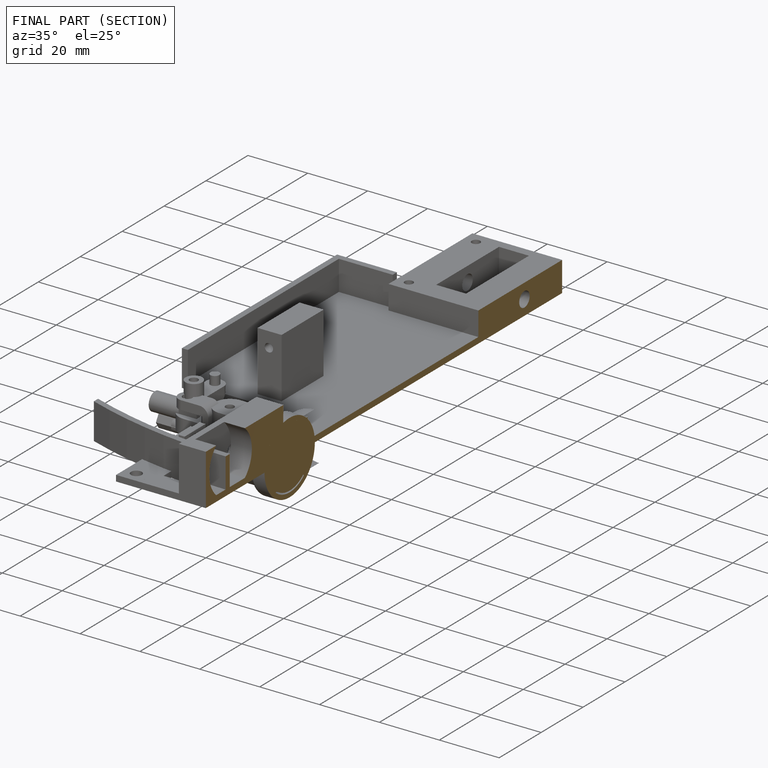
[diagram: finished part — half-section view (interior)]
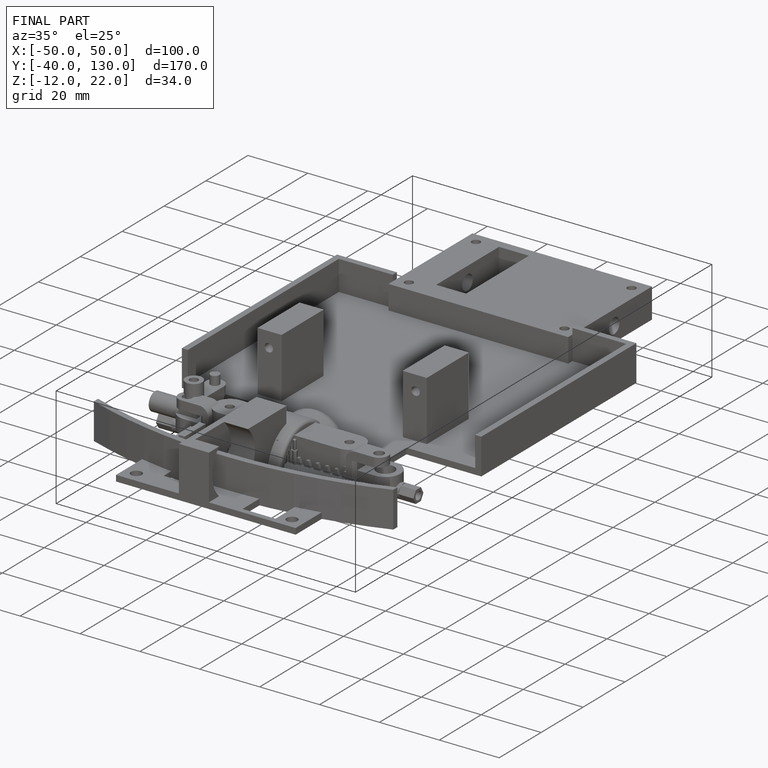
[diagram: finished part — iso view with bounding-box wireframe]
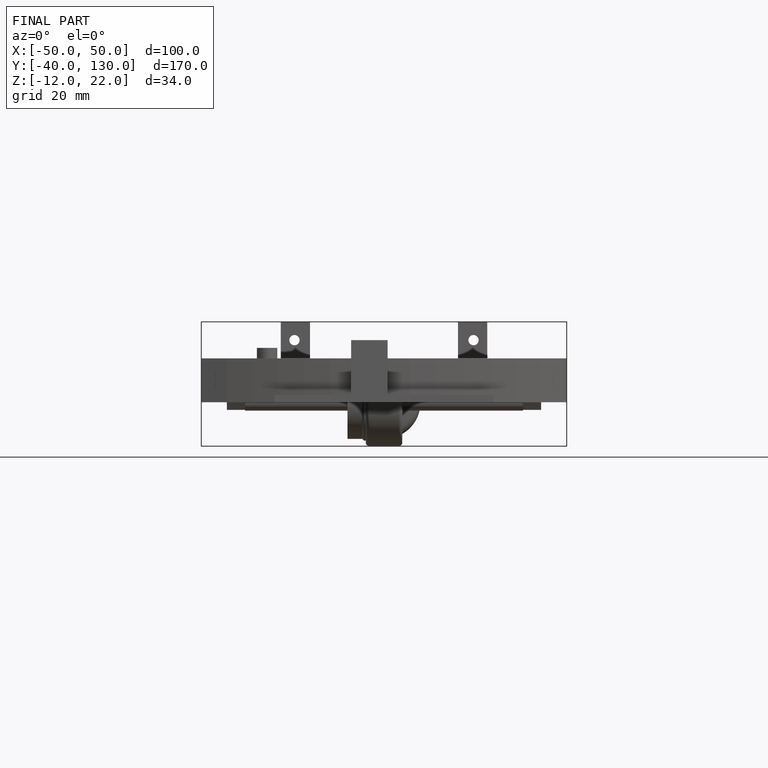
[diagram: finished part — front view with bounding-box wireframe]
